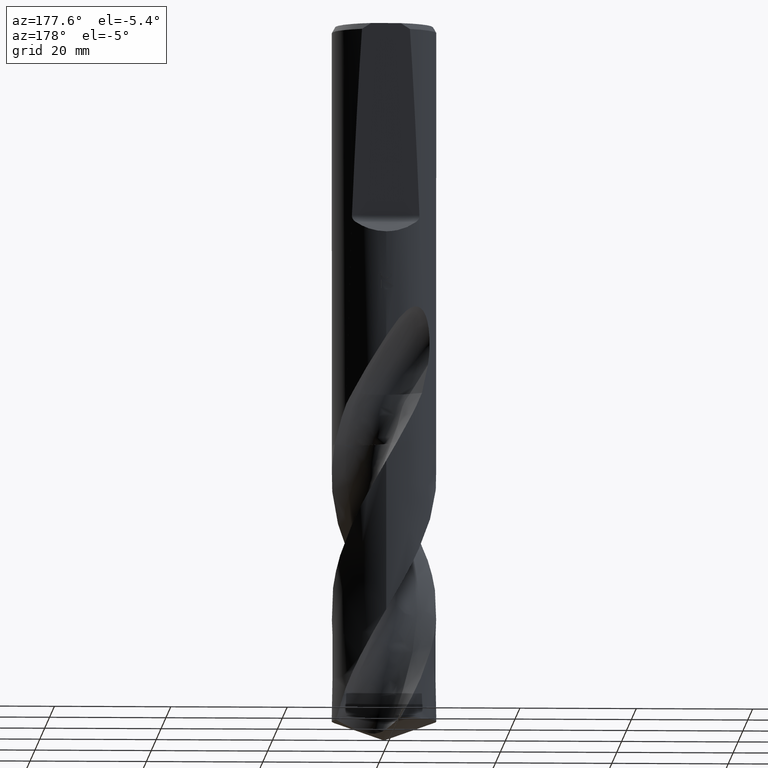
[diagram: clean part render]
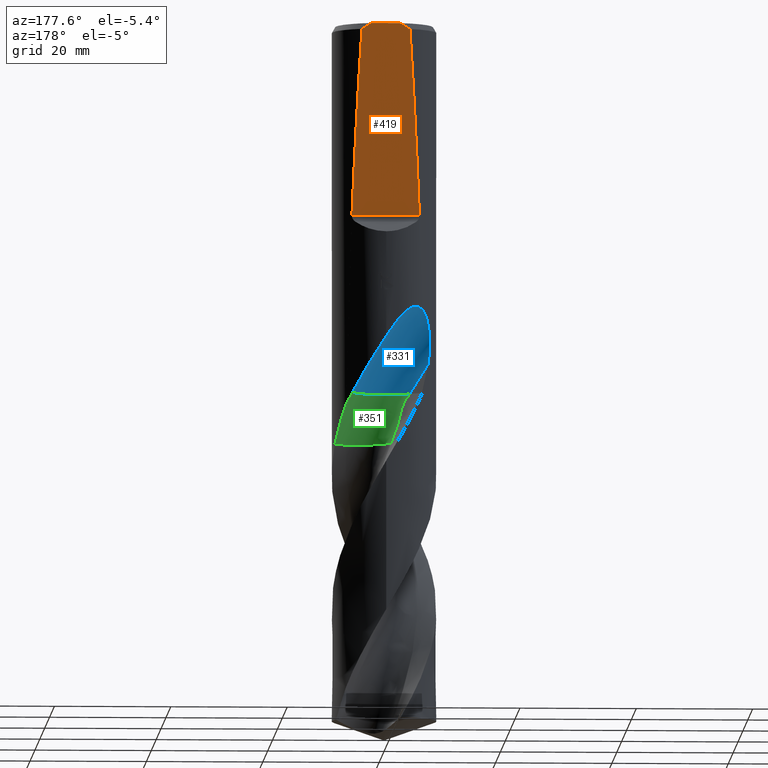
[diagram: same view with three faces highlighted in distinct colors, each labeled with its STEP entity id]
A machine part, auxiliary view with three faces highlighted in distinct colors.
Their STEP definitions:

[orange] entity #419 — the highlighted planar face has unit normal (0, -0.9994, 0.0349).
#307=EDGE_CURVE('',#569,#713,#824,.T.);
#373=VERTEX_POINT('',#896);
#381=EDGE_CURVE('',#667,#569,#906,.T.);
#409=EDGE_CURVE('',#715,#469,#934,.T.);
#419=ADVANCED_FACE('',(#945),#946,.F.);
#451=EDGE_CURVE('',#373,#715,#983,.T.);
#469=VERTEX_POINT('',#1003);
#569=VERTEX_POINT('',#1111);
#579=EDGE_CURVE('',#713,#373,#1121,.T.);
#635=EDGE_CURVE('',#469,#667,#1183,.T.);
#667=VERTEX_POINT('',#1217);
#713=VERTEX_POINT('',#1267);
#715=VERTEX_POINT('',#1269);
#824=(B_SPLINE_CURVE(2,(#2146,#2147,#2148),.UNSPECIFIED.,.F.,.F.)B_SPLINE_CURVE_WITH_KNOTS((3,3),(0.0,1.89006957470008),.UNSPECIFIED.)RATIONAL_B_SPLINE_CURVE((1.0,1.0037959427067,1.0))BOUNDED_CURVE()REPRESENTATION_ITEM('')GEOMETRIC_REPRESENTATION_ITEM()CURVE());
#896=CARTESIAN_POINT('',(-2.5159494251356,8.03809846780194,0.0));
#906=ELLIPSE('',#3329,257.883375130596,9.0);
#934=ELLIPSE('',#3421,257.883375130596,9.0);
#945=FACE_OUTER_BOUND('',#3454,.T.);
#946=PLANE('',#3455);
#983=(B_SPLINE_CURVE(2,(#3734,#3735,#3736),.UNSPECIFIED.,.F.,.F.)B_SPLINE_CURVE_WITH_KNOTS((3,3),(0.0,1.89006957470008),.UNSPECIFIED.)RATIONAL_B_SPLINE_CURVE((1.0,1.0037959427067,1.0))BOUNDED_CURVE()REPRESENTATION_ITEM('')GEOMETRIC_REPRESENTATION_ITEM()CURVE());
#1003=CARTESIAN_POINT('',(-5.79730310474847,6.88413224100712,-33.0452691504272));
#1111=CARTESIAN_POINT('',(4.11693414196418,8.00317769831019,-1.0));
#1121=LINE('',#5336,#5337);
#1183=LINE('',#6577,#6578);
#1217=CARTESIAN_POINT('',(5.79730310474847,6.88413224100712,-33.0452691504272));
#1267=CARTESIAN_POINT('',(2.5159494251356,8.03809846780194,0.0));
#1269=CARTESIAN_POINT('',(-4.11693414196418,8.00317769831019,-1.0));
#2146=CARTESIAN_POINT('',(4.11693414196418,8.00317769831019,-1.0));
#2147=CARTESIAN_POINT('',(3.2914063770158,8.02485251089055,-0.379314577089096));
#2148=CARTESIAN_POINT('',(2.5159494251356,8.03809846780194,2.22044604925031E-016));
#3329=AXIS2_PLACEMENT_3D('',#8424,#8425,#8426);
#3421=AXIS2_PLACEMENT_3D('',#8437,#8438,#8439);
#3454=EDGE_LOOP('',(#8456,#8457,#8458,#8459,#8460,#8461));
#3455=AXIS2_PLACEMENT_3D('',#8462,#8463,#8464);
#3734=CARTESIAN_POINT('',(-2.5159494251356,8.03809846780194,2.22044604925031E-016));
#3735=CARTESIAN_POINT('',(-3.2914063770158,8.02485251089055,-0.379314577089096));
#3736=CARTESIAN_POINT('',(-4.11693414196418,8.00317769831019,-1.0));
#5336=CARTESIAN_POINT('',(-4.5,8.03809846780194,0.0));
#5337=VECTOR('',#8605,1.0);
#6577=CARTESIAN_POINT('',(-9.0,6.88413224100712,-33.0452691504272));
#6578=VECTOR('',#8658,1.0);
#8424=CARTESIAN_POINT('',(0.0,0.0,-230.181023636994));
#8425=DIRECTION('',(0.0,-0.999390827019096,0.0348994967025007));
#8426=DIRECTION('',(0.0,0.0348994967025007,0.999390827019096));
#8437=CARTESIAN_POINT('',(0.0,0.0,-230.181023636994));
#8438=DIRECTION('',(0.0,-0.999390827019096,0.0348994967025007));
#8439=DIRECTION('',(0.0,0.0348994967025007,0.999390827019096));
#8456=ORIENTED_EDGE('',*,*,#409,.F.);
#8457=ORIENTED_EDGE('',*,*,#451,.F.);
#8458=ORIENTED_EDGE('',*,*,#579,.F.);
#8459=ORIENTED_EDGE('',*,*,#307,.F.);
#8460=ORIENTED_EDGE('',*,*,#381,.F.);
#8461=ORIENTED_EDGE('',*,*,#635,.F.);
#8462=CARTESIAN_POINT('',(-9.0,6.88413224100712,-33.0452691504272));
#8463=DIRECTION('',(0.0,-0.999390827019096,0.0348994967025007));
#8464=DIRECTION('',(0.0,-0.0348994967025007,-0.999390827019096));
#8605=DIRECTION('',(-1.0,0.0,0.0));
#8658=DIRECTION('',(1.0,0.0,0.0));

[blue] entity #331 — the highlighted face is a SurfaceOfRevolution surface.
#295=EDGE_CURVE('',#505,#709,#811,.T.);
#301=EDGE_CURVE('',#479,#571,#817,.T.);
#331=ADVANCED_FACE('',(#849),#850,.F.);
#479=VERTEX_POINT('',#1013);
#505=VERTEX_POINT('',#1040);
#541=EDGE_CURVE('',#549,#505,#1080,.T.);
#549=VERTEX_POINT('',#1090);
#571=VERTEX_POINT('',#1113);
#691=EDGE_CURVE('',#709,#571,#1243,.T.);
#709=VERTEX_POINT('',#1263);
#757=EDGE_CURVE('',#549,#479,#1316,.T.);
#811=CIRCLE('',#2097,6.0);
#817=B_SPLINE_CURVE_WITH_KNOTS('',3,(#2108,#2109,#2110,#2111,#2112,#2113,#2114,#2115,#2116,#2117,#2118,#2119,#2120,#2121,#2122,#2123,#2124,#2125,#2126,#2127,#2128,#2129,#2130,#2131,#2132,#2133,#2134,#2135,#2136,#2137),.UNSPECIFIED.,.F.,.F.,(4,2,2,2,2,2,2,2,2,2,2,2,2,2,4),(0.0,4.262976817962,6.71123824567215,8.89235029024701,11.4048404132002,14.439323669959,17.2190104172487,18.4220665226547,19.2988195253407,20.1268227676933,21.1747033682268,22.7056772339491,24.8835914108033,26.3262060908725,27.8429149951346),.UNSPECIFIED.);
#849=FACE_OUTER_BOUND('',#2269,.T.);
#850=SURFACE_OF_REVOLUTION('',#2270,#2271);
#1013=CARTESIAN_POINT('',(-3.5404608389987E-013,8.99999999999999,-54.0462201875557));
#1040=CARTESIAN_POINT('',(-0.982866494863641,2.78102920504439,-63.613));
#1080=CIRCLE('',#4886,6.0);
#1090=CARTESIAN_POINT('',(5.73492168841538,6.93618578382549,-63.613));
#1113=CARTESIAN_POINT('',(-7.32277946978824,5.23229403195653,-58.6847779476165));
#1243=CIRCLE('',#6780,39.1073391014154);
#1263=CARTESIAN_POINT('',(-4.24264068704858,4.45735931295143,-63.613));
#1316=B_SPLINE_CURVE_WITH_KNOTS('',3,(#8189,#8190,#8191,#8192,#8193,#8194,#8195,#8196,#8197,#8198,#8199,#8200,#8201,#8202,#8203,#8204,#8205,#8206,#8207,#8208,#8209,#8210,#8211,#8212,#8213,#8214,#8215,#8216,#8217,#8218),.UNSPECIFIED.,.F.,.F.,(4,2,2,2,2,2,2,2,2,2,2,2,2,2,4),(0.0,4.262976817962,6.71123824567215,8.89235029024701,11.4048404132002,14.439323669959,17.2190104172487,18.4220665226547,19.2988195253407,20.1268227676933,21.1747033682268,22.7056772339491,24.8835914108033,26.3262060908725,27.8429149951346),.UNSPECIFIED.);
#2097=AXIS2_PLACEMENT_3D('',#8314,#8315,#8316);
#2108=CARTESIAN_POINT('',(5.73492168841538,6.93618578382549,-63.613));
#2109=CARTESIAN_POINT('',(5.16097520996861,7.41073162354472,-62.4027889750849));
#2110=CARTESIAN_POINT('',(4.50323961744615,7.83479698002718,-61.2711019271098));
#2111=CARTESIAN_POINT('',(3.33863412424779,8.37091803405609,-59.3574274257618));
#2112=CARTESIAN_POINT('',(2.9050827720644,8.53057993351529,-58.6626427319012));
#2113=CARTESIAN_POINT('',(2.07108421602223,8.76798261059538,-57.3266821680811));
#2114=CARTESIAN_POINT('',(1.6751227552078,8.85180769196027,-56.6929284197023));
#2115=CARTESIAN_POINT('',(0.821654960508415,8.97429133944253,-55.3318457622516));
#2116=CARTESIAN_POINT('',(0.35783907875574,9.0050340495826,-54.59499863711));
#2117=CARTESIAN_POINT('',(-0.674520373061421,8.99244222771679,-53.0104260437705));
#2118=CARTESIAN_POINT('',(-1.28479671893789,8.93109539021338,-52.1088180874024));
#2119=CARTESIAN_POINT('',(-2.49111116899442,8.6684911601456,-50.5696530359654));
#2120=CARTESIAN_POINT('',(-3.18448431243664,8.455801071121,-49.7866048541027));
#2121=CARTESIAN_POINT('',(-4.21836400145807,7.95773661676292,-49.0748423683708));
#2122=CARTESIAN_POINT('',(-4.55010948894554,7.77538091321022,-48.9039124357592));
#2123=CARTESIAN_POINT('',(-5.1309188963548,7.3999102891269,-48.7715717708757));
#2124=CARTESIAN_POINT('',(-5.36891751792034,7.22906662387628,-48.7681021644199));
#2125=CARTESIAN_POINT('',(-5.81202000666762,6.87720495531981,-48.8798337665017));
#2126=CARTESIAN_POINT('',(-6.00573706071479,6.70733336132403,-48.98534259965));
#2127=CARTESIAN_POINT('',(-6.39965739535663,6.33529758040701,-49.3161457122651));
#2128=CARTESIAN_POINT('',(-6.58187319413711,6.14257158986278,-49.5604689839896));
#2129=CARTESIAN_POINT('',(-6.95509287213978,5.72173002688107,-50.2296896132848));
#2130=CARTESIAN_POINT('',(-7.13362312950999,5.49245108859752,-50.7259809091332));
#2131=CARTESIAN_POINT('',(-7.47013131329357,5.03086986710182,-52.1157578504548));
#2132=CARTESIAN_POINT('',(-7.59232823664957,4.83339010444789,-53.1059009678346));
#2133=CARTESIAN_POINT('',(-7.65533472660837,4.73266218415033,-54.9474239173527));
#2134=CARTESIAN_POINT('',(-7.64192712776332,4.75490007471228,-55.6865422208693));
#2135=CARTESIAN_POINT('',(-7.54267433568995,4.91091079717549,-57.1868491551405));
#2136=CARTESIAN_POINT('',(-7.45330502793184,5.049618923941,-57.9423768577599));
#2137=CARTESIAN_POINT('',(-7.32277946978823,5.23229403195653,-58.6847779476166));
#2269=EDGE_LOOP('',(#8342,#8343,#8344,#8345,#8346));
#2270=(B_SPLINE_CURVE(3,(#8348,#8349,#8350,#8351,#8352,#8353,#8354,#8355,#8356),.UNSPECIFIED.,.F.,.F.)B_SPLINE_CURVE_WITH_KNOTS((4,1,3,1,4),(-2.85639375994466,-2.55363798270679,-2.25088220546891,-1.94812642823103,-1.64537065099316),.UNSPECIFIED.)RATIONAL_B_SPLINE_CURVE((1.09166106065091,1.03055368688364,0.969446313116363,1.03055368688364,1.09166106065091,1.03055368688364,0.969446313116363,1.03055368688364,1.09166106065091))BOUNDED_CURVE()REPRESENTATION_ITEM('')GEOMETRIC_REPRESENTATION_ITEM()CURVE());
#2271=AXIS1_PLACEMENT('',#8363,#8364);
#4886=AXIS2_PLACEMENT_3D('',#8578,#8579,#8580);
#6780=AXIS2_PLACEMENT_3D('',#8741,#8742,#8743);
#8189=CARTESIAN_POINT('',(5.73492168841538,6.93618578382549,-63.613));
#8190=CARTESIAN_POINT('',(5.16097520996861,7.41073162354472,-62.4027889750849));
#8191=CARTESIAN_POINT('',(4.50323961744615,7.83479698002718,-61.2711019271098));
#8192=CARTESIAN_POINT('',(3.33863412424779,8.37091803405609,-59.3574274257618));
#8193=CARTESIAN_POINT('',(2.9050827720644,8.53057993351529,-58.6626427319012));
#8194=CARTESIAN_POINT('',(2.07108421602223,8.76798261059538,-57.3266821680811));
#8195=CARTESIAN_POINT('',(1.6751227552078,8.85180769196027,-56.6929284197023));
#8196=CARTESIAN_POINT('',(0.821654960508415,8.97429133944253,-55.3318457622516));
#8197=CARTESIAN_POINT('',(0.35783907875574,9.0050340495826,-54.59499863711));
#8198=CARTESIAN_POINT('',(-0.674520373061421,8.99244222771679,-53.0104260437705));
#8199=CARTESIAN_POINT('',(-1.28479671893789,8.93109539021338,-52.1088180874024));
#8200=CARTESIAN_POINT('',(-2.49111116899442,8.6684911601456,-50.5696530359654));
#8201=CARTESIAN_POINT('',(-3.18448431243664,8.455801071121,-49.7866048541027));
#8202=CARTESIAN_POINT('',(-4.21836400145807,7.95773661676292,-49.0748423683708));
#8203=CARTESIAN_POINT('',(-4.55010948894554,7.77538091321022,-48.9039124357592));
#8204=CARTESIAN_POINT('',(-5.1309188963548,7.3999102891269,-48.7715717708757));
#8205=CARTESIAN_POINT('',(-5.36891751792034,7.22906662387628,-48.7681021644199));
#8206=CARTESIAN_POINT('',(-5.81202000666762,6.87720495531981,-48.8798337665017));
#8207=CARTESIAN_POINT('',(-6.00573706071479,6.70733336132403,-48.98534259965));
#8208=CARTESIAN_POINT('',(-6.39965739535663,6.33529758040701,-49.3161457122651));
#8209=CARTESIAN_POINT('',(-6.58187319413711,6.14257158986278,-49.5604689839896));
#8210=CARTESIAN_POINT('',(-6.95509287213978,5.72173002688107,-50.2296896132848));
#8211=CARTESIAN_POINT('',(-7.13362312950999,5.49245108859752,-50.7259809091332));
#8212=CARTESIAN_POINT('',(-7.47013131329357,5.03086986710182,-52.1157578504548));
#8213=CARTESIAN_POINT('',(-7.59232823664957,4.83339010444789,-53.1059009678346));
#8214=CARTESIAN_POINT('',(-7.65533472660837,4.73266218415033,-54.9474239173527));
#8215=CARTESIAN_POINT('',(-7.64192712776332,4.75490007471228,-55.6865422208693));
#8216=CARTESIAN_POINT('',(-7.54267433568995,4.91091079717549,-57.1868491551405));
#8217=CARTESIAN_POINT('',(-7.45330502793184,5.049618923941,-57.9423768577599));
#8218=CARTESIAN_POINT('',(-7.32277946978823,5.23229403195653,-58.6847779476166));
#8314=CARTESIAN_POINT('',(2.44949709595112E-005,8.69997550502904,-63.613));
#8315=DIRECTION('',(0.0,0.0,-1.0));
#8316=DIRECTION('',(0.707102698679602,0.707110863669923,0.0));
#8342=ORIENTED_EDGE('',*,*,#757,.F.);
#8343=ORIENTED_EDGE('',*,*,#541,.T.);
#8344=ORIENTED_EDGE('',*,*,#295,.T.);
#8345=ORIENTED_EDGE('',*,*,#691,.T.);
#8346=ORIENTED_EDGE('',*,*,#301,.F.);
#8348=CARTESIAN_POINT('',(-4.24264068704858,4.45735931295143,-63.613));
#8349=CARTESIAN_POINT('',(-3.41171094568551,3.62641997675397,-63.613));
#8350=CARTESIAN_POINT('',(-1.2511070432363,2.44568893748585,-63.613));
#8351=CARTESIAN_POINT('',(1.19744570346445,2.70438655439442,-63.613));
#8352=CARTESIAN_POINT('',(2.28408754768417,3.15172749586161,-63.613));
#8353=CARTESIAN_POINT('',(3.37072939190388,3.59906843732879,-63.613));
#8354=CARTESIAN_POINT('',(5.29174855029729,5.13920492590875,-63.613));
#8355=CARTESIAN_POINT('',(5.99487352307005,7.4988553837167,-63.613));
#8356=CARTESIAN_POINT('',(5.99996810818737,8.67396323439444,-63.613));
#8363=CARTESIAN_POINT('',(-3.05088768506864,43.5,-65.5198048031679));
#8364=DIRECTION('',(0.847998304005088,-0.0,0.52999894000318));
#8578=CARTESIAN_POINT('',(2.44949709595112E-005,8.69997550502904,-63.613));
#8579=DIRECTION('',(0.0,0.0,-1.0));
#8580=DIRECTION('',(0.707102698679602,0.707110863669923,0.0));
#8741=CARTESIAN_POINT('',(-3.05088768506864,43.5,-65.5198048031679));
#8742=DIRECTION('',(-0.847998304005088,9.29188155437458E-018,-0.52999894000318));
#8743=DIRECTION('',(-0.053559812253361,-0.994880693138896,0.0856956996053776));

[green] entity #351 — the highlighted face is a freeform B-spline surface patch.
#295=EDGE_CURVE('',#505,#709,#811,.T.);
#351=ADVANCED_FACE('',(#871),#872,.F.);
#365=EDGE_CURVE('',#709,#611,#887,.T.);
#465=VERTEX_POINT('',#999);
#505=VERTEX_POINT('',#1040);
#541=EDGE_CURVE('',#549,#505,#1080,.T.);
#549=VERTEX_POINT('',#1090);
#611=VERTEX_POINT('',#1157);
#633=EDGE_CURVE('',#465,#549,#1181,.T.);
#709=VERTEX_POINT('',#1263);
#771=EDGE_CURVE('',#611,#465,#1331,.T.);
#811=CIRCLE('',#2097,6.0);
#871=FACE_OUTER_BOUND('',#2606,.T.);
#872=B_SPLINE_SURFACE_WITH_KNOTS('',3,3,((#2607,#2608,#2609,#2610,#2611,#2612,#2613,#2614,#2615,#2616,#2617,#2618,#2619,#2620,#2621,#2622,#2623,#2624,#2625,#2626,#2627,#2628,#2629,#2630,#2631,#2632,#2633,#2634,#2635,#2636,#2637,#2638,#2639,#2640,#2641,#2642,#2643,#2644,#2645,#2646,#2647,#2648,#2649),(#2650,#2651,#2652,#2653,#2654,#2655,#2656,#2657,#2658,#2659,#2660,#2661,#2662,#2663,#2664,#2665,#2666,#2667,#2668,#2669,#2670,#2671,#2672,#2673,#2674,#2675,#2676,#2677,#2678,#2679,#2680,#2681,#2682,#2683,#2684,#2685,#2686,#2687,#2688,#2689,#2690,#2691,#2692),(#2693,#2694,#2695,#2696,#2697,#2698,#2699,#2700,#2701,#2702,#2703,#2704,#2705,#2706,#2707,#2708,#2709,#2710,#2711,#2712,#2713,#2714,#2715,#2716,#2717,#2718,#2719,#2720,#2721,#2722,#2723,#2724,#2725,#2726,#2727,#2728,#2729,#2730,#2731,#2732,#2733,#2734,#2735),(#2736,#2737,#2738,#2739,#2740,#2741,#2742,#2743,#2744,#2745,#2746,#2747,#2748,#2749,#2750,#2751,#2752,#2753,#2754,#2755,#2756,#2757,#2758,#2759,#2760,#2761,#2762,#2763,#2764,#2765,#2766,#2767,#2768,#2769,#2770,#2771,#2772,#2773,#2774,#2775,#2776,#2777,#2778),(#2779,#2780,#2781,#2782,#2783,#2784,#2785,#2786,#2787,#2788,#2789,#2790,#2791,#2792,#2793,#2794,#2795,#2796,#2797,#2798,#2799,#2800,#2801,#2802,#2803,#2804,#2805,#2806,#2807,#2808,#2809,#2810,#2811,#2812,#2813,#2814,#2815,#2816,#2817,#2818,#2819,#2820,#2821),(#2822,#2823,#2824,#2825,#2826,#2827,#2828,#2829,#2830,#2831,#2832,#2833,#2834,#2835,#2836,#2837,#2838,#2839,#2840,#2841,#2842,#2843,#2844,#2845,#2846,#2847,#2848,#2849,#2850,#2851,#2852,#2853,#2854,#2855,#2856,#2857,#2858,#2859,#2860,#2861,#2862,#2863,#2864),(#2865,#2866,#2867,#2868,#2869,#2870,#2871,#2872,#2873,#2874,#2875,#2876,#2877,#2878,#2879,#2880,#2881,#2882,#2883,#2884,#2885,#2886,#2887,#2888,#2889,#2890,#2891,#2892,#2893,#2894,#2895,#2896,#2897,#2898,#2899,#2900,#2901,#2902,#2903,#2904,#2905,#2906,#2907),(#2908,#2909,#2910,#2911,#2912,#2913,#2914,#2915,#2916,#2917,#2918,#2919,#2920,#2921,#2922,#2923,#2924,#2925,#2926,#2927,#2928,#2929,#2930,#2931,#2932,#2933,#2934,#2935,#2936,#2937,#2938,#2939,#2940,#2941,#2942,#2943,#2944,#2945,#2946,#2947,#2948,#2949,#2950),(#2951,#2952,#2953,#2954,#2955,#2956,#2957,#2958,#2959,#2960,#2961,#2962,#2963,#2964,#2965,#2966,#2967,#2968,#2969,#2970,#2971,#2972,#2973,#2974,#2975,#2976,#2977,#2978,#2979,#2980,#2981,#2982,#2983,#2984,#2985,#2986,#2987,#2988,#2989,#2990,#2991,#2992,#2993),(#2994,#2995,#2996,#2997,#2998,#2999,#3000,#3001,#3002,#3003,#3004,#3005,#3006,#3007,#3008,#3009,#3010,#3011,#3012,#3013,#3014,#3015,#3016,#3017,#3018,#3019,#3020,#3021,#3022,#3023,#3024,#3025,#3026,#3027,#3028,#3029,#3030,#3031,#3032,#3033,#3034,#3035,#3036),(#3037,#3038,#3039,#3040,#3041,#3042,#3043,#3044,#3045,#3046,#3047,#3048,#3049,#3050,#3051,#3052,#3053,#3054,#3055,#3056,#3057,#3058,#3059,#3060,#3061,#3062,#3063,#3064,#3065,#3066,#3067,#3068,#3069,#3070,#3071,#3072,#3073,#3074,#3075,#3076,#3077,#3078,#3079),(#3080,#3081,#3082,#3083,#3084,#3085,#3086,#3087,#3088,#3089,#3090,#3091,#3092,#3093,#3094,#3095,#3096,#3097,#3098,#3099,#3100,#3101,#3102,#3103,#3104,#3105,#3106,#3107,#3108,#3109,#3110,#3111,#3112,#3113,#3114,#3115,#3116,#3117,#3118,#3119,#3120,#3121,#3122),(#3123,#3124,#3125,#3126,#3127,#3128,#3129,#3130,#3131,#3132,#3133,#3134,#3135,#3136,#3137,#3138,#3139,#3140,#3141,#3142,#3143,#3144,#3145,#3146,#3147,#3148,#3149,#3150,#3151,#3152,#3153,#3154,#3155,#3156,#3157,#3158,#3159,#3160,#3161,#3162,#3163,#3164,#3165),(#3166,#3167,#3168,#3169,#3170,#3171,#3172,#3173,#3174,#3175,#3176,#3177,#3178,#3179,#3180,#3181,#3182,#3183,#3184,#3185,#3186,#3187,#3188,#3189,#3190,#3191,#3192,#3193,#3194,#3195,#3196,#3197,#3198,#3199,#3200,#3201,#3202,#3203,#3204,#3205,#3206,#3207,#3208)),.UNSPECIFIED.,.F.,.F.,.F.,(4,1,1,1,1,1,1,1,1,1,1,4),(4,1,2,2,2,2,2,2,1,2,2,2,2,2,2,2,2,2,2,2,1,2,4),(8.06827116691296E-017,0.294525393809048,0.589050787618095,0.883576181427143,1.17810157523619,1.47262696904524,1.76715236285429,2.06167775666333,2.35620315047238,2.65072854428143,2.94525393809048,3.14160420062984),(0.0,1.19578194183412,2.39156388366823,3.58734582550235,4.78312776733646,7.17469165100469,9.56625553467293,11.9578194183412,14.3493833020094,19.1325110693459,23.9156388366823,28.6987666040188,33.4818943713552,38.2650221386917,43.0481499060282,47.8312776733646,52.6144054407011,57.3975332080376,62.180660975374,66.9637887427105,71.7469165100469,74.1384803937152,76.5300442773834),.UNSPECIFIED.);
#887=B_SPLINE_CURVE_WITH_KNOTS('',3,(#3254,#3255,#3256,#3257,#3258,#3259,#3260,#3261,#3262,#3263,#3264,#3265,#3266,#3267,#3268,#3269,#3270,#3271,#3272,#3273,#3274,#3275,#3276,#3277,#3278,#3279,#3280,#3281,#3282,#3283,#3284,#3285,#3286,#3287,#3288,#3289,#3290,#3291,#3292,#3293,#3294,#3295,#3296),.UNSPECIFIED.,.F.,.F.,(4,1,2,2,2,2,2,2,1,2,2,2,2,2,2,2,2,2,2,2,1,2,4),(0.0,1.19578194183412,2.39156388366823,3.58734582550235,4.78312776733646,7.17469165100469,9.56625553467293,11.9578194183412,14.3493833020094,19.1325110693459,23.9156388366823,28.6987666040188,33.4818943713552,38.2650221386917,43.0481499060282,47.8312776733646,52.6144054407011,57.3975332080376,62.180660975374,66.9637887427105,71.7469165100469,74.1384803937152,76.5300442773834),.UNSPECIFIED.);
#999=CARTESIAN_POINT('',(8.59815028993426,2.65928779783299,-72.2));
#1040=CARTESIAN_POINT('',(-0.982866494863641,2.78102920504439,-63.613));
#1080=CIRCLE('',#4886,6.0);
#1090=CARTESIAN_POINT('',(5.73492168841538,6.93618578382549,-63.613));
#1157=CARTESIAN_POINT('',(-0.971475735130456,5.57167524575661,-72.2));
#1181=B_SPLINE_CURVE_WITH_KNOTS('',3,(#6561,#6562,#6563,#6564,#6565,#6566,#6567,#6568,#6569,#6570,#6571,#6572,#6573,#6574),.UNSPECIFIED.,.F.,.F.,(4,2,2,2,2,2,4),(0.0,2.51497102640232,4.40140358398993,5.08540061428767,6.32092284650384,7.33800236706412,10.228820779369),.UNSPECIFIED.);
#1263=CARTESIAN_POINT('',(-4.24264068704858,4.45735931295143,-63.613));
#1331=B_SPLINE_CURVE_WITH_KNOTS('',3,(#8288,#8289,#8290,#8291,#8292,#8293,#8294,#8295,#8296,#8297,#8298,#8299,#8300,#8301),.UNSPECIFIED.,.F.,.F.,(4,2,2,2,2,2,4),(0.0,2.34261914254253,4.68379508840427,7.02464312876339,9.36642841022082,10.9230604164539,12.4797344473649),.UNSPECIFIED.);
#2097=AXIS2_PLACEMENT_3D('',#8314,#8315,#8316);
#2606=EDGE_LOOP('',(#8378,#8379,#8380,#8381,#8382));
#2607=CARTESIAN_POINT('',(4.24264068704858,12.9426406870486,-63.613));
#2608=CARTESIAN_POINT('',(4.49410517187829,12.9280061886827,-63.9219449773615));
#2609=CARTESIAN_POINT('',(5.00038981777688,12.8665892635691,-64.5422166500592));
#2610=CARTESIAN_POINT('',(5.50859146904047,12.7290476830163,-65.1652024960231));
#2611=CARTESIAN_POINT('',(6.01312319455351,12.5470288974191,-65.7874434253979));
#2612=CARTESIAN_POINT('',(6.26364937184898,12.4315214565417,-66.0980931940682));
#2613=CARTESIAN_POINT('',(6.75399093622371,12.1458827756427,-66.7155735371025));
#2614=CARTESIAN_POINT('',(6.99413441467529,11.9938610945223,-67.0237320411335));
#2615=CARTESIAN_POINT('',(7.69789062080469,11.5109297059719,-67.9462134063866));
#2616=CARTESIAN_POINT('',(8.14752637383775,11.1776053216324,-68.5614777811024));
#2617=CARTESIAN_POINT('',(9.0164628765494,10.4991276422137,-69.8005130662699));
#2618=CARTESIAN_POINT('',(9.43127227932317,10.1355621953012,-70.4204101482136));
#2619=CARTESIAN_POINT('',(10.2148291589882,9.36238255811835,-71.6609900691649));
#2620=CARTESIAN_POINT('',(10.582103032129,8.94872702289917,-72.2803963403265));
#2621=CARTESIAN_POINT('',(11.2587606557898,8.07008565668913,-73.5156934032923));
#2622=CARTESIAN_POINT('',(12.1978583633769,6.69674430405435,-75.3701763417519));
#2623=CARTESIAN_POINT('',(12.8857486942738,5.17572096743599,-77.2279858514397));
#2624=CARTESIAN_POINT('',(13.5417138891053,3.06153723233831,-79.7024892904261));
#2625=CARTESIAN_POINT('',(13.7464296713277,1.9677373266301,-80.9398451454345));
#2626=CARTESIAN_POINT('',(13.8813600005638,-0.242039804003063,-83.4146984360404));
#2627=CARTESIAN_POINT('',(13.8202874555455,-1.35314509516591,-84.6520954912055));
#2628=CARTESIAN_POINT('',(13.4267369338371,-3.53166157703948,-87.1268689038967));
#2629=CARTESIAN_POINT('',(13.103630025218,-4.59649435775723,-88.3642632875652));
#2630=CARTESIAN_POINT('',(12.2039761513477,-6.61924916473669,-90.8390604633844));
#2631=CARTESIAN_POINT('',(11.6372253310084,-7.57688556872354,-92.0764568063751));
#2632=CARTESIAN_POINT('',(10.2829393859684,-9.32812631453989,-94.5512429048563));
#2633=CARTESIAN_POINT('',(9.50496318037043,-10.1237758468368,-95.7886405870159));
#2634=CARTESIAN_POINT('',(7.7734470406116,-11.5032479173475,-98.263429907499));
#2635=CARTESIAN_POINT('',(6.82875958562033,-12.0913521293672,-99.5008235234877));
#2636=CARTESIAN_POINT('',(4.81921666546804,-13.02017178939,-101.975623486626));
#2637=CARTESIAN_POINT('',(3.76191268958958,-13.3671228652639,-103.213017792021));
#2638=CARTESIAN_POINT('',(1.58932162237623,-13.792211596537,-105.687795731443));
#2639=CARTESIAN_POINT('',(0.479866469428093,-13.8781712254266,-106.925193531646));
#2640=CARTESIAN_POINT('',(-1.73154231752139,-13.7750805312218,-109.400008495146));
#2641=CARTESIAN_POINT('',(-2.82964992031788,-13.5950915233738,-110.637388003313));
#2642=CARTESIAN_POINT('',(-4.95336474507951,-12.9700090672411,-113.112138099681));
#2643=CARTESIAN_POINT('',(-5.97745967125131,-12.534306424348,-114.349633844239));
#2644=CARTESIAN_POINT('',(-7.89160716009322,-11.4214732442257,-116.824585812774));
#2645=CARTESIAN_POINT('',(-9.2282170786272,-10.4230059558837,-118.680060746701));
#2646=CARTESIAN_POINT('',(-10.3557935115381,-9.20052643935552,-120.535150402933));
#2647=CARTESIAN_POINT('',(-11.0527251953334,-8.33856010582883,-121.772016995176));
#2648=CARTESIAN_POINT('',(-11.378670177648,-7.8943477468716,-122.389812972891));
#2649=CARTESIAN_POINT('',(-11.6835397836118,-7.43989230028192,-123.008307730503));
#2650=CARTESIAN_POINT('',(4.65914407156236,12.5261004599468,-63.613));
#2651=CARTESIAN_POINT('',(4.91057549280717,12.5114329014716,-63.9219441240965));
#2652=CARTESIAN_POINT('',(5.41366326647045,12.4467838602583,-64.5423874229073));
#2653=CARTESIAN_POINT('',(5.91215500223232,12.2998640812852,-65.1657789722609));
#2654=CARTESIAN_POINT('',(6.40334206606923,12.1056778686353,-65.7883740917699));
#2655=CARTESIAN_POINT('',(6.64514860137759,11.9824793379926,-66.0991649459844));
#2656=CARTESIAN_POINT('',(7.11345969024043,11.6790178659794,-66.7165225405031));
#2657=CARTESIAN_POINT('',(7.34223027527148,11.5184528761053,-67.024555621703));
#2658=CARTESIAN_POINT('',(8.01085828362677,11.0110837967681,-67.9464547352447));
#2659=CARTESIAN_POINT('',(8.4385468123975,10.6649637448211,-68.5613622950569));
#2660=CARTESIAN_POINT('',(9.2672432952533,9.96564535065292,-69.8005692898164));
#2661=CARTESIAN_POINT('',(9.66141522507873,9.59285710281926,-70.4205910833));
#2662=CARTESIAN_POINT('',(10.4025900456116,8.80359810174911,-71.6615027314455));
#2663=CARTESIAN_POINT('',(10.7475602777494,8.38287891205146,-72.2809829317883));
#2664=CARTESIAN_POINT('',(11.3774898420573,7.492622575737,-73.5160613086653));
#2665=CARTESIAN_POINT('',(12.2465683057226,6.10641743084887,-75.3703763639415));
#2666=CARTESIAN_POINT('',(12.8639871627517,4.58517547925218,-77.2283647856213));
#2667=CARTESIAN_POINT('',(13.4260110421513,2.4820287323482,-79.7028382508501));
#2668=CARTESIAN_POINT('',(13.5850799860529,1.39924282006029,-80.9401899423949));
#2669=CARTESIAN_POINT('',(13.6313340377502,-0.777489549625262,-83.4150497949737));
#2670=CARTESIAN_POINT('',(13.5285249665119,-1.86704484599133,-84.6524469539009));
#2671=CARTESIAN_POINT('',(13.0567077363111,-3.99241796681623,-87.1272185870741));
#2672=CARTESIAN_POINT('',(12.6981811924831,-5.02641271792139,-88.3646128748062));
#2673=CARTESIAN_POINT('',(11.7351157489851,-6.97895488742411,-90.8394106067247));
#2674=CARTESIAN_POINT('',(11.1412802310528,-7.89822205032598,-92.0768071061784));
#2675=CARTESIAN_POINT('',(9.74206962920693,-9.56619825551823,-94.5515926485602));
#2676=CARTESIAN_POINT('',(8.94689410929379,-10.3181417154883,-95.7889906085655));
#2677=CARTESIAN_POINT('',(7.19151035014492,-11.6060515194074,-98.2637797066088));
#2678=CARTESIAN_POINT('',(6.24049663704397,-12.1476146352621,-99.5011733051475));
#2679=CARTESIAN_POINT('',(4.22951458725611,-12.9818320557169,-101.975973935605));
#2680=CARTESIAN_POINT('',(3.17711765585823,-13.2820751023458,-103.213367967073));
#2681=CARTESIAN_POINT('',(1.02559216218648,-13.6149345257979,-105.688144794296));
#2682=CARTESIAN_POINT('',(-0.0680054597627765,-13.6566870233751,-106.925543507985));
#2683=CARTESIAN_POINT('',(-2.23704383786249,-13.4689974836474,-109.400360918322));
#2684=CARTESIAN_POINT('',(-3.30924779094499,-13.2498328619314,-110.637738546174));
#2685=CARTESIAN_POINT('',(-5.37173195670323,-12.552652785993,-113.11248085715));
#2686=CARTESIAN_POINT('',(-6.36135275062111,-12.0850281185885,-114.349983900756));
#2687=CARTESIAN_POINT('',(-8.19876969995141,-10.9166210893828,-116.824953886912));
#2688=CARTESIAN_POINT('',(-9.47394665694462,-9.88405796467554,-118.680370684182));
#2689=CARTESIAN_POINT('',(-10.5341560507997,-8.63861519854153,-120.535498787767));
#2690=CARTESIAN_POINT('',(-11.1847577311921,-7.7639953514772,-121.772396744017));
#2691=CARTESIAN_POINT('',(-11.4883464712829,-7.31519017389342,-122.390137614606));
#2692=CARTESIAN_POINT('',(-11.7717416316217,-6.85748252594276,-123.008652503016));
#2693=CARTESIAN_POINT('',(5.36858526657363,11.5695730948488,-63.613));
#2694=CARTESIAN_POINT('',(5.61994076581025,11.5548492254407,-63.9219426433747));
#2695=CARTESIAN_POINT('',(6.11567681717526,11.4846843082899,-64.542683750527));
#2696=CARTESIAN_POINT('',(6.59196924676397,11.3218884079689,-65.1667793027969));
#2697=CARTESIAN_POINT('',(7.05286101632276,11.107325619986,-65.789989010925));
#2698=CARTESIAN_POINT('',(7.27494890829169,10.9713313484961,-66.1010246905909));
#2699=CARTESIAN_POINT('',(7.69391702505488,10.6387590741161,-66.7181692853782));
#2700=CARTESIAN_POINT('',(7.89740999742451,10.4644809455048,-67.0259847256299));
#2701=CARTESIAN_POINT('',(8.48853973739906,9.91865610896371,-67.9468735051905));
#2702=CARTESIAN_POINT('',(8.86854253308876,9.5534540395119,-68.5611619240053));
#2703=CARTESIAN_POINT('',(9.61058457992135,8.82438886680424,-69.8006668263856));
#2704=CARTESIAN_POINT('',(9.96074945293422,8.43927558294339,-70.4209050688791));
#2705=CARTESIAN_POINT('',(10.6123978985407,7.63042683491461,-71.6623923017132));
#2706=CARTESIAN_POINT('',(10.9106692471613,7.20219469352577,-72.2820007812912));
#2707=CARTESIAN_POINT('',(11.4437045730717,6.30256565812234,-73.5166997374331));
#2708=CARTESIAN_POINT('',(12.1689393208581,4.91139666646344,-75.370723423726));
#2709=CARTESIAN_POINT('',(12.6453596030156,3.41061352175991,-77.2290223278425));
#2710=CARTESIAN_POINT('',(13.0227854376022,1.35739459464455,-79.7034437783159));
#2711=CARTESIAN_POINT('',(13.093832581263,0.310170407108541,-80.9407883707753));
#2712=CARTESIAN_POINT('',(12.9725438738229,-1.77418264811887,-83.4156593621102));
#2713=CARTESIAN_POINT('',(12.7926570338138,-2.80826506203645,-84.6530568952942));
#2714=CARTESIAN_POINT('',(12.1800746493944,-4.80415086450278,-87.1278252999688));
#2715=CARTESIAN_POINT('',(11.7598573589859,-5.76597101862394,-88.3652193397159));
#2716=CARTESIAN_POINT('',(10.6907962833148,-7.55929420072338,-90.8400183402379));
#2717=CARTESIAN_POINT('',(10.0541720976949,-8.3937966994252,-92.0774149175792));
#2718=CARTESIAN_POINT('',(8.58980732927363,-9.8819337963818,-94.5521995785732));
#2719=CARTESIAN_POINT('',(7.7731951001992,-10.5413707529602,-95.7895978026221));
#2720=CARTESIAN_POINT('',(5.99722904502307,-11.6390906896032,-98.2643868672745));
#2721=CARTESIAN_POINT('',(5.04736392923353,-12.0857017595262,-99.5017801476056));
#2722=CARTESIAN_POINT('',(3.06155505299221,-12.7303002226596,-101.976582159288));
#2723=CARTESIAN_POINT('',(2.03282137553454,-12.9385882437789,-103.213975485624));
#2724=CARTESIAN_POINT('',(-0.0492280542303963,-13.0932473330156,-105.688750619262));
#2725=CARTESIAN_POINT('',(-1.09800446811656,-13.0512933418051,-106.926150373721));
#2726=CARTESIAN_POINT('',(-3.15722236154518,-12.7069805665156,-109.400972882205));
#2727=CARTESIAN_POINT('',(-4.16600607493115,-12.4171506810092,-110.638346762055));
#2728=CARTESIAN_POINT('',(-6.08465866033253,-11.5939407529614,-113.113075681675));
#2729=CARTESIAN_POINT('',(-6.99587010113756,-11.0726984197006,-114.350591501548));
#2730=CARTESIAN_POINT('',(-8.66335734073134,-9.81590268122293,-116.825592413044));
#2731=CARTESIAN_POINT('',(-9.80556620400836,-8.73336836357658,-118.680908577387));
#2732=CARTESIAN_POINT('',(-10.7242412395013,-7.46197765963636,-120.536103282299));
#2733=CARTESIAN_POINT('',(-11.278436890688,-6.57579001278329,-121.773055733994));
#2734=CARTESIAN_POINT('',(-11.5359542135797,-6.12442885074865,-122.390700802172));
#2735=CARTESIAN_POINT('',(-11.7754388961091,-5.66658480502962,-123.009250765064));
#2736=CARTESIAN_POINT('',(5.97041833799895,9.88759179198031,-63.6129999999998));
#2737=CARTESIAN_POINT('',(6.22164032777569,9.87282015596255,-63.9219412916721));
#2738=CARTESIAN_POINT('',(6.70442136216115,9.79793893497781,-64.5429543370633));
#2739=CARTESIAN_POINT('',(7.14193470435874,9.622020344237,-65.1676927289059));
#2740=CARTESIAN_POINT('',(7.55046636350555,9.39140002742234,-65.791463641969));
#2741=CARTESIAN_POINT('',(7.73867734038814,9.24562451975937,-66.1027228757635));
#2742=CARTESIAN_POINT('',(8.07413923038838,8.89275254114932,-66.7196729731778));
#2743=CARTESIAN_POINT('',(8.23537567599914,8.70979762831979,-67.0272896826705));
#2744=CARTESIAN_POINT('',(8.69851397962238,8.14251996150999,-67.9472558905871));
#2745=CARTESIAN_POINT('',(9.00175695704139,7.77069199861054,-68.5609789448616));
#2746=CARTESIAN_POINT('',(9.60645737916169,7.0366617148604,-69.8007559045045));
#2747=CARTESIAN_POINT('',(9.88808535941242,6.65301992579096,-70.4211917750757));
#2748=CARTESIAN_POINT('',(10.4026927529321,5.85503638370245,-71.6632045957992));
#2749=CARTESIAN_POINT('',(10.6306586440211,5.43635527497984,-72.2829302241223));
#2750=CARTESIAN_POINT('',(11.0205258822957,4.56546643520901,-73.5172826883071));
#2751=CARTESIAN_POINT('',(11.5371187223049,3.22981089691623,-75.3710403467694));
#2752=CARTESIAN_POINT('',(11.8200518926456,1.81979496181662,-77.2296227601314));
#2753=CARTESIAN_POINT('',(11.9542386971844,-0.0813694214883973,-79.7039966900504));
#2754=CARTESIAN_POINT('',(11.9144208920183,-1.03921630432941,-80.9413346904641));
#2755=CARTESIAN_POINT('',(11.5928610033098,-2.91800479550347,-83.4162160966756));
#2756=CARTESIAN_POINT('',(11.3264895261515,-3.83889424659998,-84.6536138677905));
#2757=CARTESIAN_POINT('',(10.5682329561595,-5.58760952819448,-87.1283792883098));
#2758=CARTESIAN_POINT('',(10.0908912772455,-6.41896265777249,-88.3657731978814));
#2759=CARTESIAN_POINT('',(8.93901302057976,-7.93757812572927,-90.8405732003864));
#2760=CARTESIAN_POINT('',(8.27787979076814,-8.63177239343291,-92.0779699504979));
#2761=CARTESIAN_POINT('',(6.79830312994792,-9.83338739224129,-94.5527537597986));
#2762=CARTESIAN_POINT('',(5.99120276822019,-10.3507011603192,-95.790152386238));
#2763=CARTESIAN_POINT('',(4.26851267008937,-11.1664505944863,-98.2649411447032));
#2764=CARTESIAN_POINT('',(3.36164447529128,-11.4772630315461,-99.5023342701655));
#2765=CARTESIAN_POINT('',(1.49454255807586,-11.8606353568095,-101.977137547379));
#2766=CARTESIAN_POINT('',(0.539819345509152,-11.9472311717464,-103.214530317253));
#2767=CARTESIAN_POINT('',(-1.36490104244836,-11.8763471712547,-105.6893037253));
#2768=CARTESIAN_POINT('',(-2.31288776517076,-11.73375488164,-106.92670477794));
#2769=CARTESIAN_POINT('',(-4.14626033926824,-11.2124403698607,-109.401531425202));
#2770=CARTESIAN_POINT('',(-5.03323546343257,-10.8487913893512,-110.638902106762));
#2771=CARTESIAN_POINT('',(-6.69054371251094,-9.90730553861208,-113.113618866584));
#2772=CARTESIAN_POINT('',(-7.46585414167664,-9.34324219358609,-114.351146181045));
#2773=CARTESIAN_POINT('',(-8.85092593180118,-8.0335673648129,-116.826175606651));
#2774=CARTESIAN_POINT('',(-9.78050536741576,-6.93720477056117,-118.68139969209));
#2775=CARTESIAN_POINT('',(-10.4847157640473,-5.69020012332516,-120.53665527914));
#2776=CARTESIAN_POINT('',(-10.8954882130657,-4.8293888734298,-121.773657459974));
#2777=CARTESIAN_POINT('',(-11.0857593229566,-4.39442119219567,-122.391215120285));
#2778=CARTESIAN_POINT('',(-11.2621534143405,-3.95550273077601,-123.009797054756));
#2779=CARTESIAN_POINT('',(6.05808134824821,8.10333302552071,-63.613));
#2780=CARTESIAN_POINT('',(6.30916171873843,8.08855442894018,-63.9219409243529));
#2781=CARTESIAN_POINT('',(6.77817643604788,8.01292067808637,-64.5430277084907));
#2782=CARTESIAN_POINT('',(7.17477161263071,7.83570127281624,-65.1679404059982));
#2783=CARTESIAN_POINT('',(7.52853712173122,7.60491387049338,-65.7918634940849));
#2784=CARTESIAN_POINT('',(7.68149091947646,7.45961206213166,-66.1031833411096));
#2785=CARTESIAN_POINT('',(7.93114932207932,7.11155526571189,-66.7200807057579));
#2786=CARTESIAN_POINT('',(8.04942975340801,6.93256383090294,-67.0276435250217));
#2787=CARTESIAN_POINT('',(8.38385968862177,6.38191172564522,-67.9473595772996));
#2788=CARTESIAN_POINT('',(8.6117248229757,6.02602541301751,-68.5609293308178));
#2789=CARTESIAN_POINT('',(9.08355624333238,5.32711211725359,-69.8007800569906));
#2790=CARTESIAN_POINT('',(9.30002569631525,4.96477376987201,-70.4212695094315));
#2791=CARTESIAN_POINT('',(9.68664721537831,4.2169683432417,-71.6634248588262));
#2792=CARTESIAN_POINT('',(9.85010760623976,3.82783556409454,-72.2831822278613));
#2793=CARTESIAN_POINT('',(10.1113142312556,3.0260092587092,-73.5174407748744));
#2794=CARTESIAN_POINT('',(10.4443640273532,1.80404261932651,-75.371126264757));
#2795=CARTESIAN_POINT('',(10.5684900398189,0.537051849051603,-77.2297855655842));
#2796=CARTESIAN_POINT('',(10.514050967036,-1.14799658200369,-79.7041466174583));
#2797=CARTESIAN_POINT('',(10.3940869279354,-1.98813220787989,-80.9414828599772));
#2798=CARTESIAN_POINT('',(9.94055204344147,-3.61207196668741,-83.4163670237979));
#2799=CARTESIAN_POINT('',(9.62427818026281,-4.39953722866303,-84.6537648370475));
#2800=CARTESIAN_POINT('',(8.79837023894061,-5.86943803275375,-87.128529559576));
#2801=CARTESIAN_POINT('',(8.30423662622822,-6.55935965897123,-88.3659233986353));
#2802=CARTESIAN_POINT('',(7.15285099789257,-7.7910556091377,-90.8407236320904));
#2803=CARTESIAN_POINT('',(6.50899356462537,-8.34386871191623,-92.078120421809));
#2804=CARTESIAN_POINT('',(5.09803325054068,-9.26688343036735,-94.5529040553871));
#2805=CARTESIAN_POINT('',(4.34129150263208,-9.65095499785413,-95.7903028039409));
#2806=CARTESIAN_POINT('',(2.75143532162161,-10.2123407703962,-98.2650913981678));
#2807=CARTESIAN_POINT('',(1.92513296622888,-10.4056834779097,-99.502484466857));
#2808=CARTESIAN_POINT('',(0.247456732087765,-10.5735369228824,-101.977288197984));
#2809=CARTESIAN_POINT('',(-0.601117452541116,-10.5651648088888,-103.214680817482));
#2810=CARTESIAN_POINT('',(-2.27067257714615,-10.3299256125694,-105.689453645866));
#2811=CARTESIAN_POINT('',(-3.09299576932647,-10.1202863244699,-106.926855243037));
#2812=CARTESIAN_POINT('',(-4.65886687684833,-9.49515141278017,-109.401682739245));
#2813=CARTESIAN_POINT('',(-5.40784981020397,-9.09622127896903,-110.639052750581));
#2814=CARTESIAN_POINT('',(-6.78073342881199,-8.11741694204671,-113.113766092528));
#2815=CARTESIAN_POINT('',(-7.41356435594436,-7.55182657849324,-114.35129666054));
#2816=CARTESIAN_POINT('',(-8.51303151709299,-6.2735307711942,-116.826333665032));
#2817=CARTESIAN_POINT('',(-9.23512309093038,-5.22565863903412,-118.681532844447));
#2818=CARTESIAN_POINT('',(-9.74118265148673,-4.06424599554766,-120.536804988874));
#2819=CARTESIAN_POINT('',(-10.0220740896796,-3.26935208243344,-121.773820585803));
#2820=CARTESIAN_POINT('',(-10.1527533963287,-2.86959264468619,-122.391354616096));
#2821=CARTESIAN_POINT('',(-10.2742673876393,-2.46709911435893,-123.009945182926));
#2822=CARTESIAN_POINT('',(5.62402476264869,6.37045708375645,-63.6130000000002));
#2823=CARTESIAN_POINT('',(5.87496758355014,6.35571293489844,-63.9219415755997));
#2824=CARTESIAN_POINT('',(6.33059026608856,6.28335524467924,-64.5428975436657));
#2825=CARTESIAN_POINT('',(6.68765205307134,6.11676888957224,-65.1675010063764));
#2826=CARTESIAN_POINT('',(6.98896184173619,5.90171928604761,-65.7911541297814));
#2827=CARTESIAN_POINT('',(7.10831453845674,5.76710530574015,-66.1023664369));
#2828=CARTESIAN_POINT('',(7.27726158409792,5.44856386658275,-66.7193573636798));
#2829=CARTESIAN_POINT('',(7.35558589466486,5.28583484744768,-67.027015781448));
#2830=CARTESIAN_POINT('',(7.57167485811852,4.78845491509866,-67.9471756325263));
#2831=CARTESIAN_POINT('',(7.73203568808246,4.46970486844951,-68.5610173465053));
#2832=CARTESIAN_POINT('',(8.08691338921206,3.84296643750963,-69.8007372119602));
#2833=CARTESIAN_POINT('',(8.24721411212151,3.51992876663046,-70.4211315859449));
#2834=CARTESIAN_POINT('',(8.52592712123117,2.85729309772048,-71.6630341132733));
#2835=CARTESIAN_POINT('',(8.63623715923746,2.51516122150827,-72.2827351279521));
#2836=CARTESIAN_POINT('',(8.79437088467071,1.81677210223604,-73.5171603447392));
#2837=CARTESIAN_POINT('',(8.98478321160147,0.756878945816268,-75.3709738203012));
#2838=CARTESIAN_POINT('',(8.99845855897264,-0.327146023061363,-77.2294967078959));
#2839=CARTESIAN_POINT('',(8.82625109112675,-1.75062901340834,-79.7038806643003));
#2840=CARTESIAN_POINT('',(8.66376183940897,-2.45485675347791,-80.9412200674925));
#2841=CARTESIAN_POINT('',(8.15791371609091,-3.7966110799567,-83.416099197098));
#2842=CARTESIAN_POINT('',(7.83261739659875,-4.44191146854542,-84.6534969079843));
#2843=CARTESIAN_POINT('',(7.02290696638407,-5.62536530963718,-87.1282630660318));
#2844=CARTESIAN_POINT('',(6.55376002327938,-6.17507103633904,-88.365656925372));
#2845=CARTESIAN_POINT('',(5.48613441630266,-7.13234516595238,-90.8404567615006));
#2846=CARTESIAN_POINT('',(4.89984982492041,-7.55487992087368,-92.0778534255749));
#2847=CARTESIAN_POINT('',(3.63542486011488,-8.23120919429237,-94.5526374692527));
#2848=CARTESIAN_POINT('',(2.96555158994728,-8.50239438688996,-95.790035939561));
#2849=CARTESIAN_POINT('',(1.57664763644592,-8.85892910249303,-98.2648248500295));
#2850=CARTESIAN_POINT('',(0.861541716937003,-8.96324747300278,-99.5022179641994));
#2851=CARTESIAN_POINT('',(-0.572303452704583,-8.97984979341509,-101.977020975641));
#2852=CARTESIAN_POINT('',(-1.29173156192012,-8.91141260860229,-103.214413918006));
#2853=CARTESIAN_POINT('',(-2.68853768136091,-8.58716045750853,-105.689187577013));
#2854=CARTESIAN_POINT('',(-3.37114563724042,-8.34983948795518,-106.926588491615));
#2855=CARTESIAN_POINT('',(-4.65089629685758,-7.70300657160184,-109.401414112523));
#2856=CARTESIAN_POINT('',(-5.25758736110965,-7.31037159886747,-110.638785608697));
#2857=CARTESIAN_POINT('',(-6.3474606574343,-6.37842010585442,-113.11350479179));
#2858=CARTESIAN_POINT('',(-6.84350397698173,-5.8527282414943,-114.351029828105));
#2859=CARTESIAN_POINT('',(-7.67877351013829,-4.68736714488392,-116.826053128838));
#2860=CARTESIAN_POINT('',(-8.21638771149279,-3.74612826949848,-118.68129659361));
#2861=CARTESIAN_POINT('',(-8.55767491252906,-2.72414236252067,-120.536539454088));
#2862=CARTESIAN_POINT('',(-8.73341293628678,-2.03002995457701,-121.773531127531));
#2863=CARTESIAN_POINT('',(-8.81728682254388,-1.68126137856441,-122.39110721697));
#2864=CARTESIAN_POINT('',(-8.89685751817117,-1.32955521125833,-123.009682392775));
#2865=CARTESIAN_POINT('',(4.70562951569755,4.83819916831611,-63.613));
#2866=CARTESIAN_POINT('',(4.95645071427337,4.82352792053742,-63.9219431878371));
#2867=CARTESIAN_POINT('',(5.40020895019645,4.7581927198399,-64.5425750535166));
#2868=CARTESIAN_POINT('',(5.72252673703192,4.613257597199,-65.1664123703256));
#2869=CARTESIAN_POINT('',(5.97820872762819,4.42849529877983,-65.7893966402711));
#2870=CARTESIAN_POINT('',(6.06851012180683,4.31386283296467,-66.1003425159462));
#2871=CARTESIAN_POINT('',(6.16878880116018,4.04699511832352,-66.7175652400768));
#2872=CARTESIAN_POINT('',(6.21359790571634,3.91142691360828,-67.0254605139882));
#2873=CARTESIAN_POINT('',(6.33190480551105,3.49937794917661,-67.9467198960044));
#2874=CARTESIAN_POINT('',(6.43844835088697,3.23576063859011,-68.5612354271983));
#2875=CARTESIAN_POINT('',(6.7023596485347,2.71203922251467,-69.8006310440432));
#2876=CARTESIAN_POINT('',(6.8203187303828,2.44291491490728,-70.4207899027779));
#2877=CARTESIAN_POINT('',(7.0204935999524,1.89310581159754,-71.6620659899362));
#2878=CARTESIAN_POINT('',(7.0935857320791,1.61137970163491,-72.281627428787));
#2879=CARTESIAN_POINT('',(7.18311098860994,1.04189442129192,-73.5164655483609));
#2880=CARTESIAN_POINT('',(7.28407528570113,0.178501552243345,-75.3705961288408));
#2881=CARTESIAN_POINT('',(7.24516843300667,-0.69837392633796,-77.2287811164293));
#2882=CARTESIAN_POINT('',(7.03619238298246,-1.83736808118969,-79.7032216815011));
#2883=CARTESIAN_POINT('',(6.87246115331543,-2.3991956706926,-80.9405688596283));
#2884=CARTESIAN_POINT('',(6.39846675277948,-3.45572960742886,-83.41543576686));
#2885=CARTESIAN_POINT('',(6.10580491741746,-3.96236769881046,-84.65283318226));
#2886=CARTESIAN_POINT('',(5.39474596664952,-4.87641089099196,-87.1276027304699));
#2887=CARTESIAN_POINT('',(4.99021240465809,-5.29919165008969,-88.3649968614508));
#2888=CARTESIAN_POINT('',(4.08240086974499,-6.01817497068128,-90.8397954368059));
#2889=CARTESIAN_POINT('',(3.58902792112819,-6.33275368042798,-92.0771919560517));
#2890=CARTESIAN_POINT('',(2.53643777062485,-6.81555692537223,-94.5519769592298));
#2891=CARTESIAN_POINT('',(1.98246171482597,-7.00393326986886,-95.7893749881834));
#2892=CARTESIAN_POINT('',(0.845322257013718,-7.22277139346311,-98.264164242677));
#2893=CARTESIAN_POINT('',(0.262467186967959,-7.2741775225024,-99.5015574959903));
#2894=CARTESIAN_POINT('',(-0.894140311286769,-7.21682225658041,-101.976359110912));
#2895=CARTESIAN_POINT('',(-1.47254728291783,-7.12839565243642,-103.213752660238));
#2896=CARTESIAN_POINT('',(-2.58250987257219,-6.79813855319478,-105.68852837654));
#2897=CARTESIAN_POINT('',(-3.12338310456498,-6.57488518334629,-106.925927765203));
#2898=CARTESIAN_POINT('',(-4.12303503497589,-5.99034527725188,-109.400748410253));
#2899=CARTESIAN_POINT('',(-4.59538872729703,-5.64503962685318,-110.638123585794));
#2900=CARTESIAN_POINT('',(-5.42803881534409,-4.84007738272437,-113.112857569126));
#2901=CARTESIAN_POINT('',(-5.80476659648733,-4.39227341440005,-114.350368649369));
#2902=CARTESIAN_POINT('',(-6.41999815828661,-3.4116768731573,-116.825358171789));
#2903=CARTESIAN_POINT('',(-6.8120326520451,-2.62603075388985,-118.680711282646));
#2904=CARTESIAN_POINT('',(-7.03611621103483,-1.78529888043843,-120.535881541983));
#2905=CARTESIAN_POINT('',(-7.14048416779706,-1.21815286934,-121.77281401392));
#2906=CARTESIAN_POINT('',(-7.19436996133187,-0.931766415623089,-122.390494220481));
#2907=CARTESIAN_POINT('',(-7.24854628469507,-0.640836253520808,-123.009031315785));
#2908=CARTESIAN_POINT('',(3.3819877665918,3.63851726502723,-63.613));
#2909=CARTESIAN_POINT('',(3.63271374638276,3.62395107733525,-63.9219456197022));
#2910=CARTESIAN_POINT('',(4.06715688218177,3.56878004015029,-64.5420880121995));
#2911=CARTESIAN_POINT('',(4.36251222335101,3.4546497287061,-65.1647682510224));
#2912=CARTESIAN_POINT('',(4.58332378605886,3.31211589003023,-65.7867423805902));
#2913=CARTESIAN_POINT('',(4.65162558205845,3.22503782526377,-66.0972858729802));
#2914=CARTESIAN_POINT('',(4.7011926008387,3.02755205913571,-66.7148586778082));
#2915=CARTESIAN_POINT('',(4.72181373800708,2.92770397116946,-67.023111661798));
#2916=CARTESIAN_POINT('',(4.77131848461444,2.62569610158956,-67.9460316165671));
#2917=CARTESIAN_POINT('',(4.84236647979919,2.43045997605276,-68.561564765156));
#2918=CARTESIAN_POINT('',(5.04913274741561,2.03172584684972,-69.800470723054));
#2919=CARTESIAN_POINT('',(5.14222371652636,1.8264846247876,-70.420273855352));
#2920=CARTESIAN_POINT('',(5.29999452522013,1.40744222905359,-71.6606038938703));
#2921=CARTESIAN_POINT('',(5.35500642478242,1.19432460651619,-72.2799544911317));
#2922=CARTESIAN_POINT('',(5.41629615067068,0.768108672056247,-73.5154162558109));
#2923=CARTESIAN_POINT('',(5.48870515730604,0.118720263571484,-75.3700256867382));
#2924=CARTESIAN_POINT('',(5.45961297717575,-0.544661778863135,-77.2277004025824));
#2925=CARTESIAN_POINT('',(5.29803457666638,-1.40074377140083,-79.702226435943));
#2926=CARTESIAN_POINT('',(5.17445158254984,-1.82594240698364,-80.9395853843934));
#2927=CARTESIAN_POINT('',(4.8137346755759,-2.61878432946432,-83.41443380165));
#2928=CARTESIAN_POINT('',(4.59255377464584,-3.00220423012264,-84.6518307161223));
#2929=CARTESIAN_POINT('',(4.05410437962918,-3.68707467734506,-87.1266055247393));
#2930=CARTESIAN_POINT('',(3.74824648814679,-4.00715223805623,-88.3640000510359));
#2931=CARTESIAN_POINT('',(3.06253976684915,-4.54449726993095,-90.8387966117758));
#2932=CARTESIAN_POINT('',(2.68941581289949,-4.78273947038578,-92.0761929530624));
#2933=CARTESIAN_POINT('',(1.89571666935326,-5.14184251566389,-94.550979434313));
#2934=CARTESIAN_POINT('',(1.47668553775686,-5.28461906752259,-95.7883769224223));
#2935=CARTESIAN_POINT('',(0.620440890873319,-5.44477346115649,-98.2631664160934));
#2936=CARTESIAN_POINT('',(0.179501617130109,-5.48393627599293,-99.5005600482236));
#2937=CARTESIAN_POINT('',(-0.690337235265893,-5.43628615003926,-101.975359497066));
#2938=CARTESIAN_POINT('',(-1.12799283339798,-5.36966724775162,-103.212754047343));
#2939=CARTESIAN_POINT('',(-1.96172020113109,-5.11693042541124,-105.687532759101));
#2940=CARTESIAN_POINT('',(-2.37104545075135,-4.9482824705675,-106.924930066706));
#2941=CARTESIAN_POINT('',(-3.1207424996066,-4.50466177529448,-109.399742861519));
#2942=CARTESIAN_POINT('',(-3.47828242054595,-4.2436437547207,-110.637123927498));
#2943=CARTESIAN_POINT('',(-4.1016484781751,-3.63487070792854,-113.111879931089));
#2944=CARTESIAN_POINT('',(-4.38680819991084,-3.29623643749563,-114.349370188352));
#2945=CARTESIAN_POINT('',(-4.8451111738565,-2.55632231404606,-116.824308520243));
#2946=CARTESIAN_POINT('',(-5.14300088731014,-1.96182882127129,-118.679827256916));
#2947=CARTESIAN_POINT('',(-5.30754313134567,-1.3285687388061,-120.534888004352));
#2948=CARTESIAN_POINT('',(-5.38047072693468,-0.903639617231113,-121.771730910338));
#2949=CARTESIAN_POINT('',(-5.4237683335793,-0.685654273859518,-122.389568463931));
#2950=CARTESIAN_POINT('',(-5.47128617979946,-0.460254688184754,-123.008048022682));
#2951=CARTESIAN_POINT('',(1.7670914858817,2.87472792784055,-63.613));
#2952=CARTESIAN_POINT('',(2.01775683860812,2.86028992990753,-63.9219486656278));
#2953=CARTESIAN_POINT('',(2.44623645566566,2.81754937622579,-64.5414783629149));
#2954=CARTESIAN_POINT('',(2.72473290192571,2.74072452199843,-65.1627102376377));
#2955=CARTESIAN_POINT('',(2.92443444982293,2.64872362843838,-65.7834199377811));
#2956=CARTESIAN_POINT('',(2.97968295106517,2.5943998723984,-66.0934597471341));
#2957=CARTESIAN_POINT('',(3.00086230864904,2.47802905458548,-66.7114707647306));
#2958=CARTESIAN_POINT('',(3.00870577781226,2.41938421284741,-67.0201715054889));
#2959=CARTESIAN_POINT('',(3.02431352659439,2.24265078513804,-67.9451700736853));
#2960=CARTESIAN_POINT('',(3.08124457641,2.1231552985106,-68.5619770131706));
#2961=CARTESIAN_POINT('',(3.26960851608355,1.86061490996978,-69.8002700404719));
#2962=CARTESIAN_POINT('',(3.35744652189175,1.72372481158932,-70.4196278883732));
#2963=CARTESIAN_POINT('',(3.51259922254363,1.44212771171233,-71.6587737380016));
#2964=CARTESIAN_POINT('',(3.57022560855494,1.29991272489617,-72.2778603988559));
#2965=CARTESIAN_POINT('',(3.646084392785,1.01899324962158,-73.5141028215677));
#2966=CARTESIAN_POINT('',(3.75329003105956,0.582683474557969,-75.369311632716));
#2967=CARTESIAN_POINT('',(3.79556410917253,0.120752692340628,-77.2263476305008));
#2968=CARTESIAN_POINT('',(3.76146778918609,-0.478358107345388,-79.7009806450108));
#2969=CARTESIAN_POINT('',(3.71596565988034,-0.784465532270488,-80.9383543430412));
#2970=CARTESIAN_POINT('',(3.54019452136203,-1.35785291394756,-83.4131795862643));
#2971=CARTESIAN_POINT('',(3.42318507101352,-1.64411026205218,-84.6505759021717));
#2972=CARTESIAN_POINT('',(3.11643822183466,-2.15978228938731,-87.1253572678955));
#2973=CARTESIAN_POINT('',(2.93482031806873,-2.41022316985512,-88.3627521220792));
#2974=CARTESIAN_POINT('',(2.51438150901144,-2.83822513297507,-90.8375465224887));
#2975=CARTESIAN_POINT('',(2.27848805874656,-3.03832444422489,-92.0749424256645));
#2976=CARTESIAN_POINT('',(1.76844042759987,-3.35420618187785,-94.5497308263405));
#2977=CARTESIAN_POINT('',(1.49178043775937,-3.49251906381981,-95.7871275884093));
#2978=CARTESIAN_POINT('',(0.92137035523072,-3.67805639234572,-98.2619174103017));
#2979=CARTESIAN_POINT('',(0.619790012141958,-3.74669920830025,-99.499311571894));
#2980=CARTESIAN_POINT('',(0.0215542497993936,-3.79158119115483,-101.974108169976));
#2981=CARTESIAN_POINT('',(-0.287741217613328,-3.78668907836769,-103.211504028675));
#2982=CARTESIAN_POINT('',(-0.879631056992299,-3.68832157669047,-105.686286518363));
#2983=CARTESIAN_POINT('',(-1.17892398904004,-3.61011424278485,-106.923680984082));
#2984=CARTESIAN_POINT('',(-1.73033605399503,-3.37390312762925,-109.39848439792));
#2985=CARTESIAN_POINT('',(-2.00247359321549,-3.22687208547544,-110.63587264141));
#2986=CARTESIAN_POINT('',(-2.48251831952787,-2.86659247778164,-113.110656154763));
#2987=CARTESIAN_POINT('',(-2.71174330997636,-2.65900792857003,-114.348120208288));
#2988=CARTESIAN_POINT('',(-3.0897417497146,-2.19496660497911,-116.822994794311));
#2989=CARTESIAN_POINT('',(-3.35302938767175,-1.81072350544199,-118.678720698031));
#2990=CARTESIAN_POINT('',(-3.52082028790518,-1.39328551600561,-120.533644299213));
#2991=CARTESIAN_POINT('',(-3.60494492047558,-1.11357606779749,-121.770375199017));
#2992=CARTESIAN_POINT('',(-3.65796605856817,-0.964120082263448,-122.388409673025));
#2993=CARTESIAN_POINT('',(-3.71813476734101,-0.803362191899223,-123.006817194615));
#2994=CARTESIAN_POINT('',(1.54718551131916E-005,2.61260866165562,-63.6129999999999));
#2995=CARTESIAN_POINT('',(0.250660018754601,2.59831092255175,-63.9219520631908));
#2996=CARTESIAN_POINT('',(0.677041266147249,2.56919667950819,-64.540798606877));
#2997=CARTESIAN_POINT('',(0.950234253149059,2.53296520820055,-65.160415569815));
#2998=CARTESIAN_POINT('',(1.14440420163892,2.4954498040653,-65.779715436857));
#2999=CARTESIAN_POINT('',(1.1966698615415,2.47625946518759,-66.0891936458577));
#3000=CARTESIAN_POINT('',(1.21423029109007,2.4457510247855,-66.7076932661169));
#3001=CARTESIAN_POINT('',(1.22180680971741,2.43024411046737,-67.0168932546072));
#3002=CARTESIAN_POINT('',(1.24134192199086,2.38322985384257,-67.9442094565743));
#3003=CARTESIAN_POINT('',(1.30675039251047,2.3403116651522,-68.5624366910265));
#3004=CARTESIAN_POINT('',(1.51703949570208,2.2134424848381,-69.8000462565071));
#3005=CARTESIAN_POINT('',(1.61969210332061,2.1434851844392,-70.4189076486345));
#3006=CARTESIAN_POINT('',(1.81223807703091,1.99417510888083,-71.6567331191321));
#3007=CARTESIAN_POINT('',(1.89294852278613,1.9190508095595,-72.2755255210165));
#3008=CARTESIAN_POINT('',(2.02492628325884,1.77294198795119,-73.5126383326159));
#3009=CARTESIAN_POINT('',(2.22728376554265,1.53043466358031,-75.3685154926574));
#3010=CARTESIAN_POINT('',(2.39632968482181,1.24056412896151,-77.2248392782039));
#3011=CARTESIAN_POINT('',(2.55882104741141,0.850352989885708,-79.6995916188212));
#3012=CARTESIAN_POINT('',(2.62260809889143,0.635542952371905,-80.936981779139));
#3013=CARTESIAN_POINT('',(2.68752354487382,0.21847333719522,-83.4117811073444));
#3014=CARTESIAN_POINT('',(2.69840478222301,-0.00504479917664147,-84.6491768398972));
#3015=CARTESIAN_POINT('',(2.66249926927452,-0.426064071511968,-87.1239654248064));
#3016=CARTESIAN_POINT('',(2.61998601181501,-0.645931910140452,-88.3613607590824));
#3017=CARTESIAN_POINT('',(2.48513357125013,-1.0463026409817,-90.8361526136733));
#3018=CARTESIAN_POINT('',(2.39163367828752,-1.24973753474539,-92.0735481524944));
#3019=CARTESIAN_POINT('',(2.16557013073948,-1.60659910253136,-94.548338582116));
#3020=CARTESIAN_POINT('',(2.02644647872999,-1.78196880202224,-95.7857345282468));
#3021=CARTESIAN_POINT('',(1.7221945815131,-2.07476981709886,-98.2605248401064));
#3022=CARTESIAN_POINT('',(1.54541474303868,-2.21207709680631,-99.4979195297765));
#3023=CARTESIAN_POINT('',(1.1802260911236,-2.42434930452696,-101.972712949813));
#3024=CARTESIAN_POINT('',(0.975845153915034,-2.51578712230342,-103.210110205224));
#3025=CARTESIAN_POINT('',(0.570568066737428,-2.63534377357834,-105.684897031094));
#3026=CARTESIAN_POINT('',(0.350315830480751,-2.67562351132043,-106.922288403599));
#3027=CARTESIAN_POINT('',(-0.0715574404387216,-2.69545019933932,-109.397081082963));
#3028=CARTESIAN_POINT('',(-0.295058826711325,-2.68228892043673,-110.634477415719));
#3029=CARTESIAN_POINT('',(-0.710087770452576,-2.60140681157856,-113.109291704224));
#3030=CARTESIAN_POINT('',(-0.923828447167212,-2.53546599090773,-114.346726493872));
#3031=CARTESIAN_POINT('',(-1.30506222107413,-2.35872967261718,-116.821529995564));
#3032=CARTESIAN_POINT('',(-1.59627043500522,-2.18572804077899,-118.677486906374));
#3033=CARTESIAN_POINT('',(-1.82982016298026,-1.97387575776366,-120.532257564948));
#3034=CARTESIAN_POINT('',(-1.96681496678605,-1.82988255113692,-121.768863603205));
#3035=CARTESIAN_POINT('',(-2.04903396403513,-1.74318237522558,-122.387117526584));
#3036=CARTESIAN_POINT('',(-2.14007337161322,-1.64061036119021,-123.005444830457));
#3037=CARTESIAN_POINT('',(-1.76705976510131,2.87473316640566,-63.613));
#3038=CARTESIAN_POINT('',(-1.51639441327809,2.86057567907349,-63.9219555175511));
#3039=CARTESIAN_POINT('',(-1.08806567310988,2.84511007619179,-64.5401072860074));
#3040=CARTESIAN_POINT('',(-0.808163972472017,2.84926400224573,-65.1580818637702));
#3041=CARTESIAN_POINT('',(-0.603470833153424,2.86549436030937,-65.7759479097563));
#3042=CARTESIAN_POINT('',(-0.54386067898787,2.88079083702135,-66.084854967421));
#3043=CARTESIAN_POINT('',(-0.504838776151819,2.93349776565792,-66.703851498173));
#3044=CARTESIAN_POINT('',(-0.484995501482075,2.95934840226962,-67.0135592309713));
#3045=CARTESIAN_POINT('',(-0.42404689614681,3.03532666002117,-67.9432324955502));
#3046=CARTESIAN_POINT('',(-0.328296700292239,3.06322759313972,-68.5629041715338));
#3047=CARTESIAN_POINT('',(-0.0576431537632519,3.05982306173589,-69.7998186831712));
#3048=CARTESIAN_POINT('',(0.0786157849033647,3.04961596605945,-70.4181751612955));
#3049=CARTESIAN_POINT('',(0.345346129206717,3.01604215443764,-71.6546577771278));
#3050=CARTESIAN_POINT('',(0.467622212473458,2.99841871280849,-72.2731509063108));
#3051=CARTESIAN_POINT('',(0.692435874356194,2.96502485654198,-73.5111489415609));
#3052=CARTESIAN_POINT('',(1.04210597950255,2.880353547182,-75.3677057944937));
#3053=CARTESIAN_POINT('',(1.38241167143458,2.71833437552742,-77.2233052638692));
#3054=CARTESIAN_POINT('',(1.79366627823179,2.47096102036807,-79.6981789613096));
#3055=CARTESIAN_POINT('',(1.98853883886626,2.31179203721854,-80.9355858138853));
#3056=CARTESIAN_POINT('',(2.32915370084225,1.97444121500818,-83.4103588857669));
#3057=CARTESIAN_POINT('',(2.48063094449516,1.77383588664992,-84.647753944961));
#3058=CARTESIAN_POINT('',(2.73138073612744,1.36477226249142,-87.1225499324535));
#3059=CARTESIAN_POINT('',(2.83085721806582,1.13378085477422,-88.3599457811744));
#3060=CARTESIAN_POINT('',(2.97731465294573,0.676949916894254,-90.8347349336952));
#3061=CARTESIAN_POINT('',(3.01910865735056,0.428988228960219,-92.0721301295581));
#3062=CARTESIAN_POINT('',(3.05290490407959,-0.049525122879545,-94.5469226803838));
#3063=CARTESIAN_POINT('',(3.03463825643235,-0.300280835621291,-95.7843178235255));
#3064=CARTESIAN_POINT('',(2.9539466095328,-0.772988667914585,-98.2591085222891));
#3065=CARTESIAN_POINT('',(2.87666105228898,-1.01223156260723,-99.4965036935399));
#3066=CARTESIAN_POINT('',(2.68589351500869,-1.45233641066287,-101.971294103818));
#3067=CARTESIAN_POINT('',(2.55394628030746,-1.6664114117578,-103.208692779815));
#3068=CARTESIAN_POINT('',(2.26398608071195,-2.04867940885447,-105.683483793064));
#3069=CARTESIAN_POINT('',(2.08497597585212,-2.22528858488123,-106.920872076708));
#3070=CARTESIAN_POINT('',(1.71273936257118,-2.52773132037312,-109.395653947594));
#3071=CARTESIAN_POINT('',(1.49691938938455,-2.65679379923612,-110.633058389531));
#3072=CARTESIAN_POINT('',(1.06300152960124,-2.86215142663338,-113.107904103543));
#3073=CARTESIAN_POINT('',(0.822961230369093,-2.93625013350102,-114.345309253695));
#3074=CARTESIAN_POINT('',(0.355230894758694,-3.03350816597855,-116.820040090445));
#3075=CARTESIAN_POINT('',(-0.0240160071645063,-3.05454704837587,-118.676232140456));
#3076=CARTESIAN_POINT('',(-0.380171644054916,-3.02033908249733,-120.530847268114));
#3077=CARTESIAN_POINT('',(-0.607156517680444,-2.99087075859681,-121.76732626042));
#3078=CARTESIAN_POINT('',(-0.735533221555955,-2.95574836957052,-122.385803519848));
#3079=CARTESIAN_POINT('',(-0.873004572194369,-2.8998954196978,-123.00404911814));
#3080=CARTESIAN_POINT('',(-3.20245778930873,3.55372502470202,-63.613));
#3081=CARTESIAN_POINT('',(-2.95173854386073,3.53968147622778,-63.9219583734582));
#3082=CARTESIAN_POINT('',(-2.51823096570745,3.535322523181,-64.5395354449793));
#3083=CARTESIAN_POINT('',(-2.22220060053205,3.57209666665294,-65.1561514807136));
#3084=CARTESIAN_POINT('',(-1.99468628781282,3.63132720853878,-65.7728315108936));
#3085=CARTESIAN_POINT('',(-1.91992888861307,3.67406255640353,-66.0812661226432));
#3086=CARTESIAN_POINT('',(-1.84117660557383,3.79201217585743,-66.7006736897357));
#3087=CARTESIAN_POINT('',(-1.80022619913922,3.84987484772026,-67.010801412734));
#3088=CARTESIAN_POINT('',(-1.67231108903227,4.0197799986165,-67.9424243793141));
#3089=CARTESIAN_POINT('',(-1.53247628911856,4.10008828364206,-68.5632908499584));
#3090=CARTESIAN_POINT('',(-1.1786149303087,4.18612228554389,-69.7996304497397));
#3091=CARTESIAN_POINT('',(-0.998351149964181,4.21806489363917,-70.4175692637415));
#3092=CARTESIAN_POINT('',(-0.638652350072312,4.26378980278454,-71.6529411110257));
#3093=CARTESIAN_POINT('',(-0.46618177325147,4.28434878322614,-72.2711866797996));
#3094=CARTESIAN_POINT('',(-0.133314941463634,4.32286981640974,-73.5099169626562));
#3095=CARTESIAN_POINT('',(0.382389901545909,4.33443384596401,-75.3670360232655));
#3096=CARTESIAN_POINT('',(0.901361366119165,4.2369655892331,-77.2220363794518));
#3097=CARTESIAN_POINT('',(1.56107226391722,4.04688883344153,-79.697010435151));
#3098=CARTESIAN_POINT('',(1.88180346349292,3.90121763835557,-80.9344311502036));
#3099=CARTESIAN_POINT('',(2.47749691998403,3.56052393212495,-83.4091824183529));
#3100=CARTESIAN_POINT('',(2.75447601072058,3.3431239232598,-84.6465769072495));
#3101=CARTESIAN_POINT('',(3.25213544298891,2.87025176415125,-87.1213791297644));
#3102=CARTESIAN_POINT('',(3.46951540972255,2.59315519986343,-88.3587753313623));
#3103=CARTESIAN_POINT('',(3.84067957088722,2.01570187600241,-90.8335622823203));
#3104=CARTESIAN_POINT('',(3.98606122881197,1.6949508028047,-92.0709571650278));
#3105=CARTESIAN_POINT('',(4.20949493747381,1.04589982684536,-94.5457514958792));
#3106=CARTESIAN_POINT('',(4.27457220410197,0.699832171750579,-95.7831458569921));
#3107=CARTESIAN_POINT('',(4.33760833930816,0.0164038306816187,-98.2579370859967));
#3108=CARTESIAN_POINT('',(4.31864419613017,-0.335220567538655,-99.4953325822003));
#3109=CARTESIAN_POINT('',(4.21743905040626,-1.0141293006467,-101.970120439494));
#3110=CARTESIAN_POINT('',(4.11545348718622,-1.35121063222108,-103.207520289128));
#3111=CARTESIAN_POINT('',(3.85578140483215,-1.98669668962015,-105.682314832331));
#3112=CARTESIAN_POINT('',(3.67666831948365,-2.28990880914224,-106.919700477865));
#3113=CARTESIAN_POINT('',(3.27371645880829,-2.84555010689555,-109.394473508155));
#3114=CARTESIAN_POINT('',(3.02772614610848,-3.09756803235251,-110.631884647722));
#3115=CARTESIAN_POINT('',(2.50387113472236,-3.54152179886902,-113.106756276367));
#3116=CARTESIAN_POINT('',(2.20532049911827,-3.7279485755388,-114.344136961438));
#3117=CARTESIAN_POINT('',(1.59330721533525,-4.03593939196132,-116.81880766746));
#3118=CARTESIAN_POINT('',(1.08909961739259,-4.19930548494543,-118.675194270591));
#3119=CARTESIAN_POINT('',(0.582812286418185,-4.28455775283405,-120.529680670146));
#3120=CARTESIAN_POINT('',(0.249727655134314,-4.32927842869007,-121.76605464729));
#3121=CARTESIAN_POINT('',(0.0687791815862173,-4.32611521002419,-122.384716621466));
#3122=CARTESIAN_POINT('',(-0.120243328825755,-4.29801794979083,-123.002894621083));
#3123=CARTESIAN_POINT('',(-3.96494720231463,4.17969038994224,-63.613));
#3124=CARTESIAN_POINT('',(-3.71417826782251,4.16570735946174,-63.9219599207314));
#3125=CARTESIAN_POINT('',(-3.27587235640677,4.16725960900925,-64.5392258274634));
#3126=CARTESIAN_POINT('',(-2.9651958769987,4.22125651893661,-65.1551062985674));
#3127=CARTESIAN_POINT('',(-2.71743468889264,4.30295461344846,-65.7711441726534));
#3128=CARTESIAN_POINT('',(-2.6294050855117,4.35993841933873,-66.0793229872454));
#3129=CARTESIAN_POINT('',(-2.51685647275106,4.5112057877058,-66.6989531007737));
#3130=CARTESIAN_POINT('',(-2.45835145764178,4.58517248087288,-67.0093082245119));
#3131=CARTESIAN_POINT('',(-2.2758944295224,4.8015681204578,-67.9419868346398));
#3132=CARTESIAN_POINT('',(-2.10157774282557,4.90680163863761,-68.5635002267696));
#3133=CARTESIAN_POINT('',(-1.68406468511809,5.03416893200484,-69.799528518625));
#3134=CARTESIAN_POINT('',(-1.47091619074841,5.0848670654593,-70.4172412046383));
#3135=CARTESIAN_POINT('',(-1.04321484020598,5.16434064800144,-71.6520116455033));
#3136=CARTESIAN_POINT('',(-0.834728540541074,5.2003295906914,-72.2701231844157));
#3137=CARTESIAN_POINT('',(-0.425883571680788,5.26587109871335,-73.5092499104164));
#3138=CARTESIAN_POINT('',(0.204414443827476,5.31035576559478,-75.366673390492));
#3139=CARTESIAN_POINT('',(0.840806029340543,5.22480628166466,-77.2213493765633));
#3140=CARTESIAN_POINT('',(1.65890040919156,5.0317366541331,-79.6963777309077));
#3141=CARTESIAN_POINT('',(2.05751773247884,4.87519241209137,-80.9338059172488));
#3142=CARTESIAN_POINT('',(2.80642759836604,4.49396176653963,-83.408545487937));
#3143=CARTESIAN_POINT('',(3.15650303058852,4.24748708006857,-84.6459396838071));
#3144=CARTESIAN_POINT('',(3.79332428357362,3.6988725075279,-87.1207451427898));
#3145=CARTESIAN_POINT('',(4.07479501095196,3.37618507075511,-88.3581415759188));
#3146=CARTESIAN_POINT('',(4.56316040498903,2.69210394617719,-90.8329273933349));
#3147=CARTESIAN_POINT('',(4.75997556679699,2.31184292122857,-92.070322106595));
#3148=CARTESIAN_POINT('',(5.07193811924825,1.53137943806172,-94.5451173425399));
#3149=CARTESIAN_POINT('',(5.17284777146409,1.11528597348751,-95.7825113932964));
#3150=CARTESIAN_POINT('',(5.29067700093226,0.283162539547377,-98.2573027419605));
#3151=CARTESIAN_POINT('',(5.2898877920763,-0.144995511207737,-99.4946985911468));
#3152=CARTESIAN_POINT('',(5.2065922341167,-0.981343531581093,-101.969484879498));
#3153=CARTESIAN_POINT('',(5.1040862036654,-1.39707853566684,-103.206885454249));
#3154=CARTESIAN_POINT('',(4.82442567763503,-2.18973871710913,-105.681681916018));
#3155=CARTESIAN_POINT('',(4.62613072904286,-2.56923164437442,-106.919066216998));
#3156=CARTESIAN_POINT('',(4.16643011785487,-3.27282240622854,-109.393834285707));
#3157=CARTESIAN_POINT('',(3.88368895290927,-3.59438218839316,-110.631249179087));
#3158=CARTESIAN_POINT('',(3.269600805833,-4.16854166116422,-113.106134758924));
#3159=CARTESIAN_POINT('',(2.91882541479592,-4.41382575967193,-114.343502234624));
#3160=CARTESIAN_POINT('',(2.18803586945965,-4.82702334655821,-116.818140389638));
#3161=CARTESIAN_POINT('',(1.58702714463427,-5.05729004804668,-118.674632224894));
#3162=CARTESIAN_POINT('',(0.972223066173694,-5.19186100625001,-120.529049132065));
#3163=CARTESIAN_POINT('',(0.563993997829277,-5.2652678102798,-121.765366044818));
#3164=CARTESIAN_POINT('',(0.346537039642774,-5.27342504737844,-122.384128064537));
#3165=CARTESIAN_POINT('',(0.122255916369732,-5.25426920796868,-123.002269532309));
#3166=CARTESIAN_POINT('',(-4.24264068704858,4.45735931295143,-63.613));
#3167=CARTESIAN_POINT('',(-3.99184971480068,4.44339832717795,-63.9219604895747));
#3168=CARTESIAN_POINT('',(-3.55141274316238,4.44710550667542,-64.5391119708282));
#3169=CARTESIAN_POINT('',(-3.23426353705191,4.50735511855796,-65.1547219489491));
#3170=CARTESIAN_POINT('',(-2.97760663075765,4.59716562354658,-65.7705236812179));
#3171=CARTESIAN_POINT('',(-2.8837643854183,4.65927733703094,-66.0786084281627));
#3172=CARTESIAN_POINT('',(-2.75652983630361,4.82242785907191,-66.6983203833031));
#3173=CARTESIAN_POINT('',(-2.69044340102281,4.90209076743256,-67.0087591284033));
#3174=CARTESIAN_POINT('',(-2.48456900634331,5.13478026539436,-67.9418259341438));
#3175=CARTESIAN_POINT('',(-2.29562159573407,5.24854553214003,-68.5635772143915));
#3176=CARTESIAN_POINT('',(-1.8512830908097,5.38980899876269,-69.7994910424539));
#3177=CARTESIAN_POINT('',(-1.62437682005681,5.44665689080103,-70.4171205676312));
#3178=CARTESIAN_POINT('',(-1.16842171806357,5.53685254244701,-71.651669847765));
#3179=CARTESIAN_POINT('',(-0.945066742041519,5.57755189841988,-72.2697320983262));
#3180=CARTESIAN_POINT('',(-0.505070410200188,5.65083949107343,-73.5090046150527));
#3181=CARTESIAN_POINT('',(0.171906331511537,5.70390413066005,-75.3665400420304));
#3182=CARTESIAN_POINT('',(0.855278903470644,5.61850456333409,-77.2210967160858));
#3183=CARTESIAN_POINT('',(1.7360014571889,5.4180824675941,-79.6961450900085));
#3184=CARTESIAN_POINT('',(2.16505067583684,5.25419825455156,-80.9335760342903));
#3185=CARTESIAN_POINT('',(2.97307998789446,4.85094301423908,-83.4083112303298));
#3186=CARTESIAN_POINT('',(3.3509810801269,4.59010411733905,-84.6457053198216));
#3187=CARTESIAN_POINT('',(4.03998321585692,4.00606525305762,-87.1205120392962));
#3188=CARTESIAN_POINT('',(4.34506887399339,3.66282121604079,-88.35790853642));
#3189=CARTESIAN_POINT('',(4.87571279999114,2.931935410881,-90.8326939089567));
#3190=CARTESIAN_POINT('',(5.09058669145781,2.52609648597529,-92.0700885549745));
#3191=CARTESIAN_POINT('',(5.4325039087877,1.69012595979952,-94.5448841616523));
#3192=CARTESIAN_POINT('',(5.54488234916025,1.24489613603748,-95.7822780271807));
#3193=CARTESIAN_POINT('',(5.67862873758927,0.351732581284816,-98.2570695241379));
#3194=CARTESIAN_POINT('',(5.68205977137425,-0.107452498078658,-99.4944653849482));
#3195=CARTESIAN_POINT('',(5.59972921270233,-1.00686856694413,-101.96925122842));
#3196=CARTESIAN_POINT('',(5.49395457682976,-1.45374255022339,-103.206651985817));
#3197=CARTESIAN_POINT('',(5.20025576634246,-2.30789019737168,-105.681449189052));
#3198=CARTESIAN_POINT('',(4.9913917422373,-2.71685545988852,-106.918832955109));
#3199=CARTESIAN_POINT('',(4.50344917817408,-3.47684797307517,-109.3935992443));
#3200=CARTESIAN_POINT('',(4.20344121431763,-3.82452635440693,-110.631015465607));
#3201=CARTESIAN_POINT('',(3.54853690060283,-4.44675450315793,-113.105906235705));
#3202=CARTESIAN_POINT('',(3.17478060632659,-4.71332198287949,-114.343268770571));
#3203=CARTESIAN_POINT('',(2.39284068604233,-5.16357334396649,-116.817895062131));
#3204=CARTESIAN_POINT('',(1.75087865030108,-5.41657421606941,-118.674425602827));
#3205=CARTESIAN_POINT('',(1.09116454886021,-5.56645797976707,-120.528816819276));
#3206=CARTESIAN_POINT('',(0.652049580851345,-5.64830319364401,-121.765112896837));
#3207=CARTESIAN_POINT('',(0.419688736316046,-5.65952362823183,-122.383911655654));
#3208=CARTESIAN_POINT('',(0.181091492057835,-5.64253718818886,-123.00203966582));
#3254=CARTESIAN_POINT('',(-4.24264068704858,4.45735931295143,-63.613));
#3255=CARTESIAN_POINT('',(-3.99184971480068,4.44339832717795,-63.9219604895747));
#3256=CARTESIAN_POINT('',(-3.55141274316238,4.44710550667542,-64.5391119708282));
#3257=CARTESIAN_POINT('',(-3.23426353705191,4.50735511855796,-65.1547219489491));
#3258=CARTESIAN_POINT('',(-2.97760663075765,4.59716562354658,-65.7705236812179));
#3259=CARTESIAN_POINT('',(-2.8837643854183,4.65927733703094,-66.0786084281627));
#3260=CARTESIAN_POINT('',(-2.75652983630361,4.82242785907191,-66.6983203833031));
#3261=CARTESIAN_POINT('',(-2.69044340102281,4.90209076743256,-67.0087591284033));
#3262=CARTESIAN_POINT('',(-2.48456900634331,5.13478026539436,-67.9418259341438));
#3263=CARTESIAN_POINT('',(-2.29562159573407,5.24854553214003,-68.5635772143915));
#3264=CARTESIAN_POINT('',(-1.8512830908097,5.38980899876269,-69.7994910424539));
#3265=CARTESIAN_POINT('',(-1.62437682005681,5.44665689080103,-70.4171205676312));
#3266=CARTESIAN_POINT('',(-1.16842171806357,5.53685254244701,-71.651669847765));
#3267=CARTESIAN_POINT('',(-0.945066742041519,5.57755189841988,-72.2697320983262));
#3268=CARTESIAN_POINT('',(-0.505070410200188,5.65083949107343,-73.5090046150527));
#3269=CARTESIAN_POINT('',(0.171906331511537,5.70390413066005,-75.3665400420304));
#3270=CARTESIAN_POINT('',(0.855278903470644,5.61850456333409,-77.2210967160858));
#3271=CARTESIAN_POINT('',(1.7360014571889,5.4180824675941,-79.6961450900085));
#3272=CARTESIAN_POINT('',(2.16505067583684,5.25419825455156,-80.9335760342903));
#3273=CARTESIAN_POINT('',(2.97307998789446,4.85094301423908,-83.4083112303298));
#3274=CARTESIAN_POINT('',(3.3509810801269,4.59010411733905,-84.6457053198216));
#3275=CARTESIAN_POINT('',(4.03998321585692,4.00606525305762,-87.1205120392962));
#3276=CARTESIAN_POINT('',(4.34506887399339,3.66282121604079,-88.35790853642));
#3277=CARTESIAN_POINT('',(4.87571279999114,2.931935410881,-90.8326939089567));
#3278=CARTESIAN_POINT('',(5.09058669145781,2.52609648597529,-92.0700885549745));
#3279=CARTESIAN_POINT('',(5.4325039087877,1.69012595979952,-94.5448841616523));
#3280=CARTESIAN_POINT('',(5.54488234916025,1.24489613603748,-95.7822780271807));
#3281=CARTESIAN_POINT('',(5.67862873758927,0.351732581284816,-98.2570695241379));
#3282=CARTESIAN_POINT('',(5.68205977137425,-0.107452498078658,-99.4944653849482));
#3283=CARTESIAN_POINT('',(5.59972921270233,-1.00686856694413,-101.96925122842));
#3284=CARTESIAN_POINT('',(5.49395457682976,-1.45374255022339,-103.206651985817));
#3285=CARTESIAN_POINT('',(5.20025576634246,-2.30789019737168,-105.681449189052));
#3286=CARTESIAN_POINT('',(4.9913917422373,-2.71685545988852,-106.918832955109));
#3287=CARTESIAN_POINT('',(4.50344917817408,-3.47684797307517,-109.3935992443));
#3288=CARTESIAN_POINT('',(4.20344121431763,-3.82452635440693,-110.631015465607));
#3289=CARTESIAN_POINT('',(3.54853690060283,-4.44675450315793,-113.105906235705));
#3290=CARTESIAN_POINT('',(3.17478060632659,-4.71332198287949,-114.343268770571));
#3291=CARTESIAN_POINT('',(2.39284068604233,-5.16357334396649,-116.817895062131));
#3292=CARTESIAN_POINT('',(1.75087865030108,-5.41657421606941,-118.674425602827));
#3293=CARTESIAN_POINT('',(1.09116454886021,-5.56645797976707,-120.528816819276));
#3294=CARTESIAN_POINT('',(0.652049580851345,-5.64830319364401,-121.765112896837));
#3295=CARTESIAN_POINT('',(0.419688736316046,-5.65952362823183,-122.383911655654));
#3296=CARTESIAN_POINT('',(0.181091492057835,-5.64253718818886,-123.00203966582));
#4886=AXIS2_PLACEMENT_3D('',#8578,#8579,#8580);
#6561=CARTESIAN_POINT('',(8.59815028993423,2.65928779783301,-72.2));
#6562=CARTESIAN_POINT('',(8.47385909351037,3.06115268340085,-71.4748497417167));
#6563=CARTESIAN_POINT('',(8.32189328654709,3.4534210577783,-70.7630014425852));
#6564=CARTESIAN_POINT('',(8.00530241445465,4.12509626327295,-69.50724818794));
#6565=CARTESIAN_POINT('',(7.85644593001016,4.40165360476865,-68.9850376244379));
#6566=CARTESIAN_POINT('',(7.63479027450201,4.76685436754472,-68.2371665378078));
#6567=CARTESIAN_POINT('',(7.57479672389762,4.8615480945824,-68.0375799041136));
#6568=CARTESIAN_POINT('',(7.40421773756461,5.12028814364025,-67.4739964047843));
#6569=CARTESIAN_POINT('',(7.29346088606372,5.27577307578308,-67.1096968768352));
#6570=CARTESIAN_POINT('',(7.10890967799692,5.52110649320824,-66.5260621196838));
#6571=CARTESIAN_POINT('',(7.02349046184265,5.63018606187377,-66.2547458980567));
#6572=CARTESIAN_POINT('',(6.60900653857621,6.12785202673793,-65.1239418085265));
#6573=CARTESIAN_POINT('',(6.21917476200322,6.53579952818673,-64.347362512355));
#6574=CARTESIAN_POINT('',(5.73492168841538,6.93618578382549,-63.613));
#8288=CARTESIAN_POINT('',(-0.971475735130453,5.57167524575659,-72.2));
#8289=CARTESIAN_POINT('',(-0.749418834774526,4.82304085612544,-72.2));
#8290=CARTESIAN_POINT('',(-0.383272658657281,4.1249499535059,-72.2));
#8291=CARTESIAN_POINT('',(0.595854879744768,2.9088855586613,-72.2));
#8292=CARTESIAN_POINT('',(1.19929415886863,2.4024663845777,-72.2));
#8293=CARTESIAN_POINT('',(2.5663073061415,1.64952433632935,-72.2));
#8294=CARTESIAN_POINT('',(3.3167369408343,1.41019191666941,-72.2));
#8295=CARTESIAN_POINT('',(4.86745875971966,1.23251759591532,-72.2));
#8296=CARTESIAN_POINT('',(5.65290279175016,1.29599771244217,-72.2));
#8297=CARTESIAN_POINT('',(6.9034710989875,1.64915393806381,-72.2));
#8298=CARTESIAN_POINT('',(7.38242288962681,1.85436508964188,-72.2000000000001));
#8299=CARTESIAN_POINT('',(8.27555761415078,2.38284236871129,-72.2000000000001));
#8300=CARTESIAN_POINT('',(8.685986959722,2.70389147025721,-72.2));
#8301=CARTESIAN_POINT('',(9.05000000000003,3.07368511926812,-72.2));
#8314=CARTESIAN_POINT('',(2.44949709595112E-005,8.69997550502904,-63.613));
#8315=DIRECTION('',(0.0,0.0,-1.0));
#8316=DIRECTION('',(0.707102698679602,0.707110863669923,0.0));
#8378=ORIENTED_EDGE('',*,*,#771,.F.);
#8379=ORIENTED_EDGE('',*,*,#365,.F.);
#8380=ORIENTED_EDGE('',*,*,#295,.F.);
#8381=ORIENTED_EDGE('',*,*,#541,.F.);
#8382=ORIENTED_EDGE('',*,*,#633,.F.);
#8578=CARTESIAN_POINT('',(2.44949709595112E-005,8.69997550502904,-63.613));
#8579=DIRECTION('',(0.0,0.0,-1.0));
#8580=DIRECTION('',(0.707102698679602,0.707110863669923,0.0));